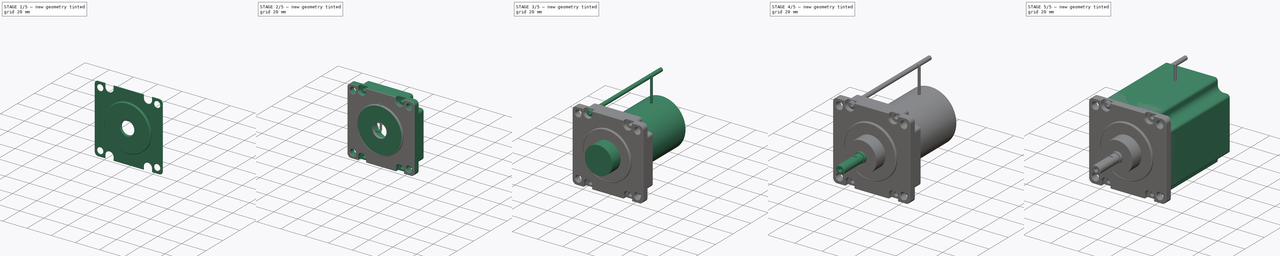
[diagram: build sequence overview — one tinted view per stage of 5, left to right]
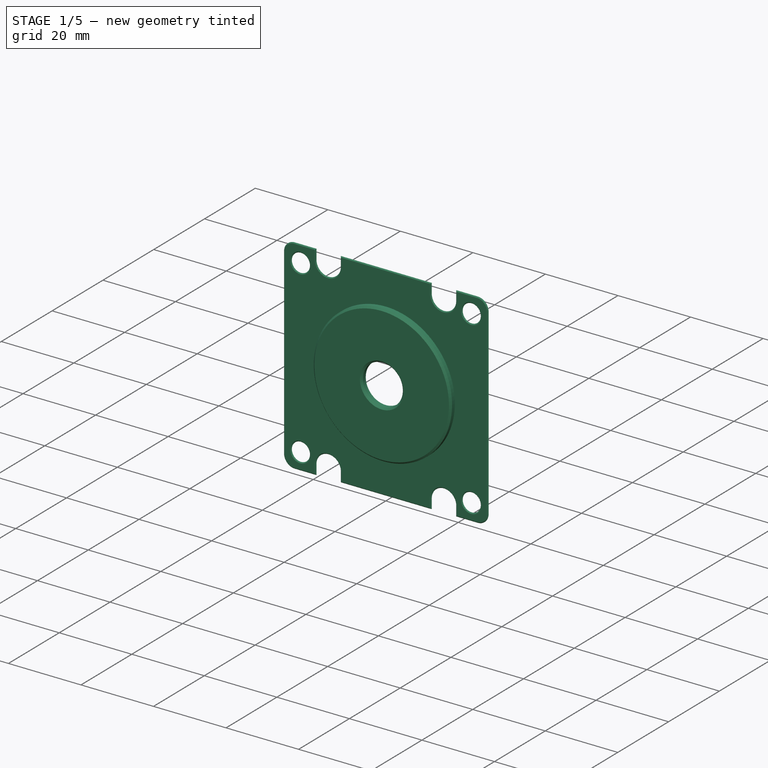
[diagram: stage 1 of 5 — iso view after this stage's code; geometry added in this stage tinted green]
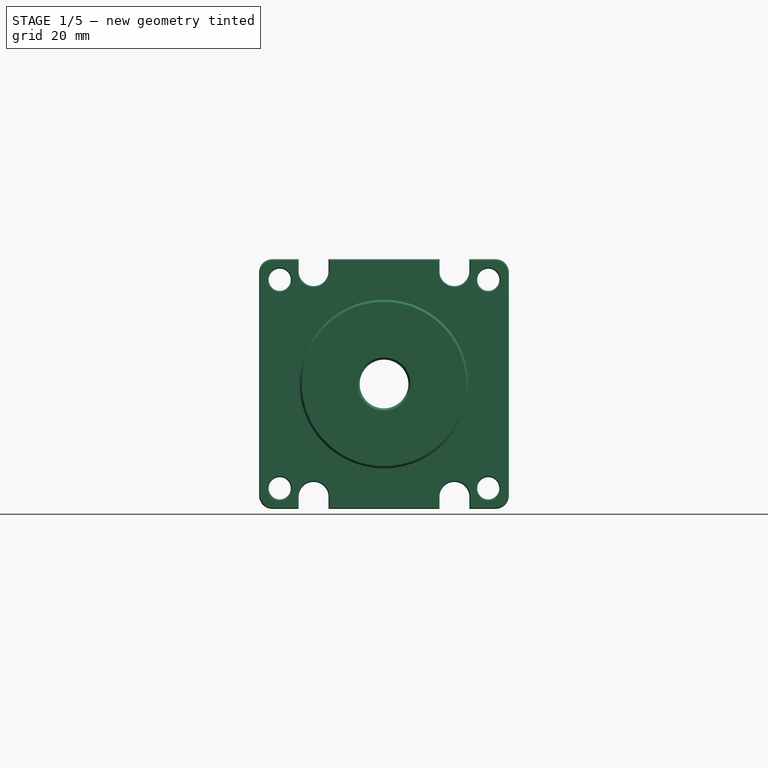
[diagram: stage 1 of 5 — front view after this stage's code; geometry added in this stage tinted green]
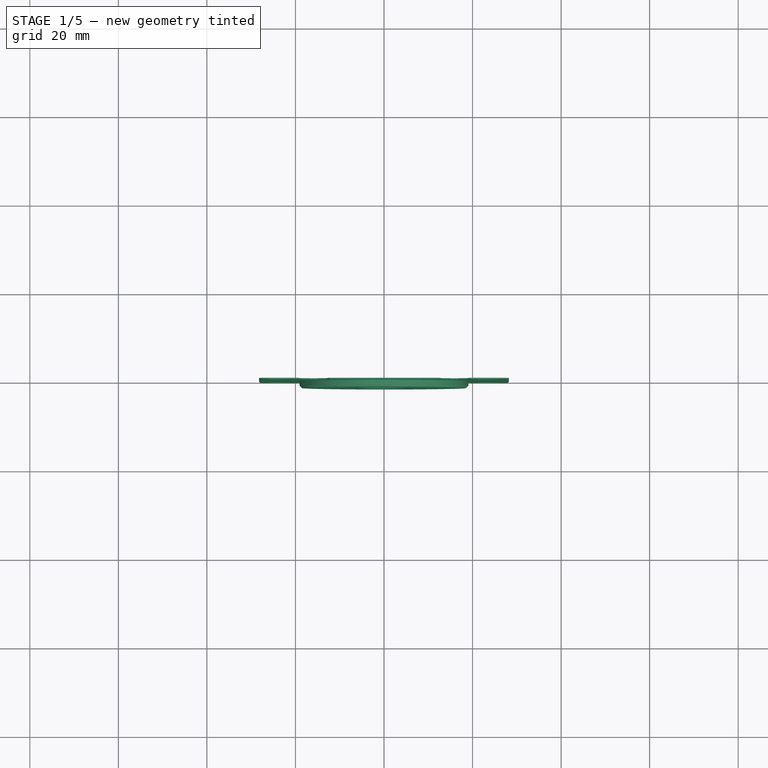
[diagram: stage 1 of 5 — top view after this stage's code; geometry added in this stage tinted green]
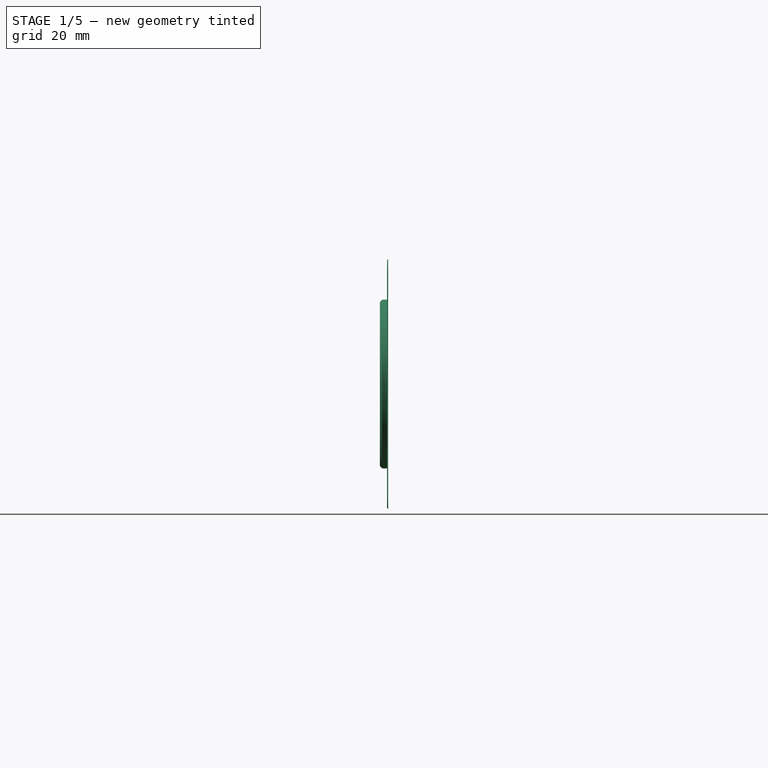
[diagram: stage 1 of 5 — right view after this stage's code; geometry added in this stage tinted green]
FCSTD DOCUMENT  (FreeCAD 0.20R29410 (Git))
Label: Nema 23 84mm Frame Stepper Motor
License: All rights reserved
LicenseURL: http://en.wikipedia.org/wiki/All_rights_reserved
objects: Sketcher::SketchObject×40, PartDesign::Pocket×21, PartDesign::Pad×20, PartDesign::Body×19, PartDesign::FeatureBase×8, PartDesign::Chamfer×5, PartDesign::Revolution×1, Part::MultiFuse×1, Part::Cut×1, App::DocumentObjectGroup×1
note: 163 computed .brp shape members not serialized (recipe doc carries the construction recipe); baked Part::Feature solids carry a one-line shape summary decoded from their .brp

FEATURE [Sketcher::SketchObject] Sketch036
  FullyConstrained = false
  MapMode = 5
  Placement = pos=(0,5,-8e-15) rot=(-1,0,0;1.5708rad)
  sketch-geometry (25):
    g0: LineSegment StartX=-26.2 StartY=19.45 StartZ=0 EndX=-23.7 EndY=19.45 EndZ=0
    g1: LineSegment StartX=-19.45 StartY=23.7 StartZ=0 EndX=-19.45 EndY=26.2 EndZ=0
    g2: LineSegment StartX=19.45 StartY=26.2 StartZ=0 EndX=19.45 EndY=23.7 EndZ=0
    g3: LineSegment StartX=23.7 StartY=19.45 StartZ=0 EndX=26.2 EndY=19.45 EndZ=0
    g4: LineSegment StartX=19.45 StartY=-26.2 StartZ=0 EndX=19.45 EndY=-23.7 EndZ=0
    g5: LineSegment StartX=23.7 StartY=-19.45 StartZ=0 EndX=26.2 EndY=-19.45 EndZ=0
    g6: LineSegment StartX=-26.2 StartY=-19.45 StartZ=0 EndX=-23.7 EndY=-19.45 EndZ=0
    g7: LineSegment StartX=-19.45 StartY=-26.2 StartZ=0 EndX=-19.45 EndY=-23.7 EndZ=0
    g8: LineSegment StartX=-28.2 StartY=17.45 StartZ=0 EndX=-28.2 EndY=-17.45 EndZ=0
    g9: LineSegment StartX=-17.45 StartY=28.2 StartZ=0 EndX=17.45 EndY=28.2 EndZ=0
    g10: LineSegment StartX=28.2 StartY=17.45 StartZ=0 EndX=28.2 EndY=-17.45 EndZ=0
    g11: LineSegment StartX=-17.45 StartY=-28.2 StartZ=0 EndX=17.45 EndY=-28.2 EndZ=0
    g12: ArcOfCircle CenterX=-17.45 CenterY=26.2 CenterZ=0 NormalX=0 NormalY=0 NormalZ=1 AngleXU=0 Radius=2 StartAngle=1.5708 EndAngle=3.14159
    g13: ArcOfCircle CenterX=-23.7 CenterY=23.7 CenterZ=0 NormalX=0 NormalY=0 NormalZ=1 AngleXU=0 Radius=4.25 StartAngle=4.71239 EndAngle=6.28319
    g14: ArcOfCircle CenterX=-26.2 CenterY=17.45 CenterZ=0 NormalX=0 NormalY=0 NormalZ=1 AngleXU=0 Radius=2 StartAngle=1.5708 EndAngle=3.14159
    g15: ArcOfCircle CenterX=17.45 CenterY=26.2 CenterZ=0 NormalX=0 NormalY=0 NormalZ=1 AngleXU=0 Radius=2 StartAngle=2e-16 EndAngle=1.5708
    g16: ArcOfCircle CenterX=23.7 CenterY=23.7 CenterZ=0 NormalX=0 NormalY=0 NormalZ=1 AngleXU=0 Radius=4.25 StartAngle=3.14159 EndAngle=4.71239
    g17: ArcOfCircle CenterX=26.2 CenterY=17.45 CenterZ=0 NormalX=0 NormalY=0 NormalZ=1 AngleXU=0 Radius=2 StartAngle=0 EndAngle=1.5708
    g18: ArcOfCircle CenterX=-26.2 CenterY=-17.45 CenterZ=0 NormalX=0 NormalY=0 NormalZ=1 AngleXU=0 Radius=2 StartAngle=3.14159 EndAngle=4.71239
    g19: ArcOfCircle CenterX=-23.7 CenterY=-23.7 CenterZ=0 NormalX=0 NormalY=0 NormalZ=1 AngleXU=0 Radius=4.25 StartAngle=4e-16 EndAngle=1.5708
    g20: ArcOfCircle CenterX=-17.45 CenterY=-26.2 CenterZ=0 NormalX=0 NormalY=0 NormalZ=1 AngleXU=0 Radius=2 StartAngle=3.14159 EndAngle=4.71239
    g21: ArcOfCircle CenterX=26.2 CenterY=-17.45 CenterZ=0 NormalX=0 NormalY=0 NormalZ=1 AngleXU=0 Radius=2 StartAngle=4.71239 EndAngle=6.28319
    g22: ArcOfCircle CenterX=23.7 CenterY=-23.7 CenterZ=0 NormalX=0 NormalY=0 NormalZ=1 AngleXU=0 Radius=4.25 StartAngle=1.5708 EndAngle=3.14159
    g23: ArcOfCircle CenterX=17.45 CenterY=-26.2 CenterZ=0 NormalX=0 NormalY=0 NormalZ=1 AngleXU=0 Radius=2 StartAngle=4.71239 EndAngle=6.28319
    g24: Circle CenterX=0 CenterY=0 CenterZ=0 NormalX=0 NormalY=0 NormalZ=1 AngleXU=0 Radius=5.5
  constraints (60):
    c: Horizontal(g0)
    c: Vertical(g2)
    c: Horizontal(g3)
    c: Vertical(g4)
    c: Horizontal(g5)
    c: Horizontal(g6)
    c: Vertical(g7)
    c: Vertical(g8)
    c: Vertical(g10)
    c: Tangent(g0,g13) = -1.5708
    c: Tangent(g13,g1) = -1.5708
    c: Tangent(g1,g12) = 1.5708
    c: Tangent(g8,g14) = -1.5708
    c: Tangent(g0,g14) = 1.5708
    c: Tangent(g9,g12) = 1.5708
    c: Vertical(g1)
    c: Tangent(g9,g15) = 1.5708
    c: Tangent(g2,g15) = 1.5708
    c: Tangent(g3,g16) = -1.5708
    c: Tangent(g2,g16) = -1.5708
    c: Tangent(g3,g17) = 1.5708
    c: Tangent(g10,g17) = 1.5708
    c: Tangent(g11,g20) = -1.5708
    c: Tangent(g7,g20) = 1.5708
    c: Tangent(g7,g19) = -1.5708
    c: Tangent(g6,g19) = 1.5708
    c: Tangent(g6,g18) = -1.5708
    c: Tangent(g18,g8) = -1.5708
    c: Tangent(g4,g23) = -1.5708
    c: Tangent(g4,g22) = 1.5708
    c: Tangent(g5,g22) = 1.5708
    c: Tangent(g5,g21) = -1.5708
    c: Tangent(g10,g21) = 1.5708
    c: Tangent(g11,g23) = -1.5708
    c: Equal(g17,g15)
    c: Equal(g15,g12)
    c: Equal(g12,g14)
    c: Equal(g14,g18)
    c: Equal(g18,g20)
    c: Equal(g20,g23)
    c: Equal(g23,g21)
    c: Radius(g14) = 2
    c: Radius(g13) = 4.25
    c: Equal(g13,g16)
    c: Equal(g16,g22)
    c: Equal(g22,g19)
    c: Equal(g6,g0)
    c: Equal(g1,g7)
    c: Equal(g4,g7)
    c: Equal(g5,g6)
    c: Equal(g3,g5)
    c: Equal(g2,g1)
    c: DistanceY(g0,g9) = 8.75
    c: DistanceX(g8,g1) = 8.75
    c: DistanceY(g11,g9) = 56.4
    c: DistanceX(g8,g10) = 56.4
    c: Coincident(g24,g-1)
    c: Radius(g24) = 5.5
    c: Symmetric(g8,g10,g-2)
    c: Symmetric(g9,g11,g-1)
FEATURE [PartDesign::Pad] Pad020
  AllowMultiFace = false
  Direction = (1,1,1)
  Length = 6
  Length2 = 100
  Placement = pos=(0,5,-8e-15) rot=(-1,0,0;1.5708rad)
  Profile = -> Sketch036
  Type = 0
FEATURE [Sketcher::SketchObject] Sketch035
  FullyConstrained = false
  MapMode = 5
  Placement = pos=(0,5,-8e-15) rot=(1,0,0;1.5708rad)
  Support = -> [Pad020]
  sketch-geometry (9):
    g0: LineSegment StartX=-28.2 StartY=25.2 StartZ=0 EndX=-28.2 EndY=-25.2 EndZ=0
    g1: LineSegment StartX=28.2 StartY=25.2 StartZ=0 EndX=28.2 EndY=-25.2 EndZ=0
    g2: LineSegment StartX=-25.2 StartY=-28.2 StartZ=0 EndX=25.2 EndY=-28.2 EndZ=0
    g3: LineSegment StartX=-25.2 StartY=28.2 StartZ=0 EndX=25.2 EndY=28.2 EndZ=0
    g4: ArcOfCircle CenterX=-25.2 CenterY=25.2 CenterZ=0 NormalX=0 NormalY=0 NormalZ=1 AngleXU=0 Radius=3 StartAngle=1.5708 EndAngle=3.14159
    g5: ArcOfCircle CenterX=25.2 CenterY=25.2 CenterZ=0 NormalX=0 NormalY=0 NormalZ=1 AngleXU=0 Radius=3 StartAngle=0 EndAngle=1.5708
    g6: ArcOfCircle CenterX=-25.2 CenterY=-25.2 CenterZ=0 NormalX=0 NormalY=0 NormalZ=1 AngleXU=0 Radius=3 StartAngle=3.14159 EndAngle=4.71239
    g7: ArcOfCircle CenterX=25.2 CenterY=-25.2 CenterZ=0 NormalX=0 NormalY=0 NormalZ=1 AngleXU=0 Radius=3 StartAngle=4.71239 EndAngle=6.28319
    g8: Circle CenterX=0 CenterY=0 CenterZ=0 NormalX=0 NormalY=0 NormalZ=1 AngleXU=0 Radius=5.5
  constraints (19):
    c: Tangent(g1,g7) = 1.5708
    c: Tangent(g2,g7) = -1.5708
    c: Tangent(g2,g6) = -1.5708
    c: Tangent(g0,g6) = -1.5708
    c: Tangent(g0,g4) = -1.5708
    c: Tangent(g3,g4) = 1.5708
    c: Tangent(g3,g5) = 1.5708
    c: Tangent(g1,g5) = 1.5708
    c: Equal(g3,g0)
    c: Equal(g0,g2)
    c: Equal(g2,g1)
    c: Radius(g4) = 3
    c: Symmetric(g0,g1,g-2)
    c: Symmetric(g2,g2,g-2)
    c: Symmetric(g3,g2,g-1)
    c: Equal(g4,g7)
    c: DistanceY(g2,g3) = 56.4
    c: Coincident(g8,g-1)
    c: Radius(g8) = 5.5
FEATURE [PartDesign::Pad] Pad019
  AllowMultiFace = false
  BaseFeature = -> Pad020
  Direction = (1,1,1)
  Length = 5
  Length2 = 100
  Placement = pos=(0,5,-8e-15) rot=(-1,0,0;1.5708rad)
  Profile = -> Sketch035
  Type = 0
FEATURE [Sketcher::SketchObject] Sketch037
  FullyConstrained = false
  MapMode = 5
  Placement = pos=(-1e-16,-6.2e-15,-7.5e-15) rot=(1,0,0;1.5708rad)
  Support = -> [Pad019]
  sketch-geometry (2):
    g0: Circle CenterX=0 CenterY=0 CenterZ=0 NormalX=0 NormalY=0 NormalZ=1 AngleXU=0 Radius=19.05
    g1: Circle CenterX=0 CenterY=0 CenterZ=0 NormalX=0 NormalY=0 NormalZ=1 AngleXU=0 Radius=5.5
  constraints (4):
    c: Coincident(g0,g-1)
    c: Radius(g0) = 19.05
    c: Coincident(g0,g1)
    c: Radius(g1) = 5.5
FEATURE [PartDesign::Pad] Pad021
  AllowMultiFace = false
  BaseFeature = -> Pad019
  Direction = (0,-1,2e-16)
  Length = 1.6
  Length2 = 100
  Placement = pos=(0,5,-8e-15) rot=(-1,0,0;1.5708rad)
  Profile = -> Sketch037
  ReferenceAxis = -> Sketch037 [N_Axis]
  Type = 0
FEATURE [Sketcher::SketchObject] Sketch038
  FullyConstrained = true
  MapMode = 5
  Placement = pos=(-1e-16,-6.2e-15,-7.5e-15) rot=(1,0,0;1.5708rad)
  Support = -> [Pad021]
  sketch-geometry (8):
    g0: LineSegment StartX=-23.55 StartY=23.55 StartZ=0 EndX=23.55 EndY=23.55 EndZ=0
    g1: LineSegment StartX=23.55 StartY=23.55 StartZ=0 EndX=23.55 EndY=-23.55 EndZ=0
    g2: LineSegment StartX=23.55 StartY=-23.55 StartZ=0 EndX=-23.55 EndY=-23.55 EndZ=0
    g3: LineSegment StartX=-23.55 StartY=-23.55 StartZ=0 EndX=-23.55 EndY=23.55 EndZ=0
    g4: Circle CenterX=-23.55 CenterY=23.55 CenterZ=0 NormalX=0 NormalY=0 NormalZ=1 AngleXU=0 Radius=2.5
    g5: Circle CenterX=23.55 CenterY=23.55 CenterZ=0 NormalX=0 NormalY=0 NormalZ=1 AngleXU=0 Radius=2.5
    g6: Circle CenterX=23.55 CenterY=-23.55 CenterZ=0 NormalX=0 NormalY=0 NormalZ=1 AngleXU=0 Radius=2.5
    g7: Circle CenterX=-23.55 CenterY=-23.55 CenterZ=0 NormalX=0 NormalY=0 NormalZ=1 AngleXU=0 Radius=2.5
  constraints (18):
    c: Coincident(g0,g1)
    c: Coincident(g1,g2)
    c: Coincident(g2,g3)
    c: Coincident(g3,g0)
    c: Equal(g0,g3)
    c: Equal(g3,g2)
    c: Equal(g2,g1)
    c: Symmetric(g0,g0,g-2)
    c: Symmetric(g0,g2,g-1)
    c: DistanceX(g2,g1) = 47.1
    c: Coincident(g2,g7)
    c: Coincident(g0,g4)
    c: Coincident(g0,g5)
    c: Coincident(g1,g6)
    c: Equal(g4,g5)
    c: Equal(g5,g6)
    c: Equal(g6,g7)
    c: Radius(g4) = 2.5
FEATURE [PartDesign::Pocket] Pocket015
  AllowMultiFace = false
  BaseFeature = -> Pad021
  Direction = (0,1,-2e-16)
  Length = 5
  Length2 = 100
  Placement = pos=(0,5,-8e-15) rot=(-1,0,0;1.5708rad)
  Profile = -> Sketch038
  Type = 1
FEATURE [Sketcher::SketchObject] Sketch039
  FullyConstrained = true
  MapMode = 5
  Placement = pos=(0,11,-4e-15) rot=(-1,0,0;1.5708rad)
  Support = -> [Pocket015]
  sketch-geometry (8):
    g0: LineSegment StartX=-15.9 StartY=25.5 StartZ=0 EndX=15.9 EndY=25.5 EndZ=0
    g1: LineSegment StartX=15.9 StartY=25.5 StartZ=0 EndX=15.9 EndY=-25.5 EndZ=0
    g2: LineSegment StartX=15.9 StartY=-25.5 StartZ=0 EndX=-15.9 EndY=-25.5 EndZ=0
    g3: LineSegment StartX=-15.9 StartY=-25.5 StartZ=0 EndX=-15.9 EndY=25.5 EndZ=0
    g4: Circle CenterX=-15.9 CenterY=25.5 CenterZ=0 NormalX=0 NormalY=0 NormalZ=1 AngleXU=0 Radius=1.5
    g5: Circle CenterX=15.9 CenterY=25.5 CenterZ=0 NormalX=0 NormalY=0 NormalZ=1 AngleXU=0 Radius=1.5
    g6: Circle CenterX=-15.9 CenterY=-25.5 CenterZ=0 NormalX=0 NormalY=0 NormalZ=1 AngleXU=0 Radius=1.5
    g7: Circle CenterX=15.9 CenterY=-25.5 CenterZ=0 NormalX=0 NormalY=0 NormalZ=1 AngleXU=0 Radius=1.5
  constraints (17):
    c: Coincident(g0,g1)
    c: Coincident(g1,g2)
    c: Coincident(g2,g3)
    c: Coincident(g3,g0)
    c: Equal(g3,g1)
    c: Symmetric(g2,g0,g-1)
    c: Symmetric(g0,g1,g-1)
    c: Symmetric(g0,g0,g-2)
    c: DistanceX(g0,g0) = 31.8
    c: DistanceY(g1,g0) = 51
    c: Coincident(g1,g7)
    c: Coincident(g5,g0)
    c: Coincident(g0,g4)
    c: Coincident(g6,g2)
    c: Equal(g6,g7)
    c: Equal(g7,g5)
    c: Equal(g5,g4)
FEATURE [PartDesign::Pocket] Pocket016
  AllowMultiFace = false
  BaseFeature = -> Pocket015
  Direction = (0,-1,-7e-16)
  Length = 5
  Length2 = 100
  Placement = pos=(0,5,-8e-15) rot=(-1,0,0;1.5708rad)
  Profile = -> Sketch039
  Type = 1
FEATURE [Sketcher::SketchObject] Sketch040
  ExternalGeometry = -> [Pocket016]
  FullyConstrained = false
  MapMode = 5
  Placement = pos=(-1e-16,-6.2e-15,-7.5e-15) rot=(1,0,0;1.5708rad)
  Support = -> [Pocket016]
  sketch-geometry (16):
    g0: LineSegment StartX=-19.275 StartY=-25.5 StartZ=0 EndX=-19.275 EndY=-30.5 EndZ=0
    g1: LineSegment StartX=-19.275 StartY=-30.5 StartZ=0 EndX=-12.525 EndY=-30.5 EndZ=0
    g2: LineSegment StartX=-12.525 StartY=-30.5 StartZ=0 EndX=-12.525 EndY=-25.5 EndZ=0
    g3: LineSegment StartX=12.525 StartY=-25.5 StartZ=0 EndX=12.525 EndY=-30.5 EndZ=0
    g4: LineSegment StartX=12.525 StartY=-30.5 StartZ=0 EndX=19.275 EndY=-30.5 EndZ=0
    g5: LineSegment StartX=19.275 StartY=-30.5 StartZ=0 EndX=19.275 EndY=-25.5 EndZ=0
    g6: ArcOfCircle CenterX=-15.9 CenterY=-25.5 CenterZ=0 NormalX=0 NormalY=0 NormalZ=1 AngleXU=0 Radius=3.375 StartAngle=0 EndAngle=3.14159
    g7: ArcOfCircle CenterX=15.9 CenterY=-25.5 CenterZ=0 NormalX=0 NormalY=0 NormalZ=1 AngleXU=0 Radius=3.375 StartAngle=0 EndAngle=3.14159
    g8: LineSegment StartX=-19.275 StartY=25.5 StartZ=0 EndX=-19.275 EndY=30.5 EndZ=0
    g9: LineSegment StartX=-19.275 StartY=30.5 StartZ=0 EndX=-12.525 EndY=30.5 EndZ=0
    g10: LineSegment StartX=-12.525 StartY=30.5 StartZ=0 EndX=-12.525 EndY=25.5 EndZ=0
    g11: LineSegment StartX=12.525 StartY=25.5 StartZ=0 EndX=12.525 EndY=30.5 EndZ=0
    g12: LineSegment StartX=12.525 StartY=30.5 StartZ=0 EndX=19.275 EndY=30.5 EndZ=0
    g13: LineSegment StartX=19.275 StartY=30.5 StartZ=0 EndX=19.275 EndY=25.5 EndZ=0
    g14: ArcOfCircle CenterX=-15.9 CenterY=25.5 CenterZ=0 NormalX=0 NormalY=0 NormalZ=1 AngleXU=0 Radius=3.375 StartAngle=3.14159 EndAngle=6.28319
    g15: ArcOfCircle CenterX=15.9 CenterY=25.5 CenterZ=0 NormalX=0 NormalY=0 NormalZ=1 AngleXU=0 Radius=3.375 StartAngle=3.14159 EndAngle=6.28319
  constraints (36):
    c: Vertical(g0)
    c: Coincident(g0,g1)
    c: Horizontal(g1)
    c: Coincident(g1,g2)
    c: Vertical(g2)
    c: Vertical(g3)
    c: Coincident(g3,g4)
    c: Horizontal(g4)
    c: Coincident(g4,g5)
    c: Tangent(g3,g7) = -1.5708
    c: Tangent(g5,g7) = -1.5708
    c: Tangent(g0,g6) = -1.5708
    c: Tangent(g2,g6) = -1.5708
    c: Equal(g2,g3)
    c: Equal(g6,g7)
    c: Radius(g6) = 3.375
    c: DistanceY(g0,g0) = 5
    c: Vertical(g5)
    c: Vertical(g8)
    c: Coincident(g8,g9)
    c: Horizontal(g9)
    c: Coincident(g9,g10)
    c: Vertical(g11)
    c: Coincident(g11,g12)
    c: Horizontal(g12)
    c: Coincident(g12,g13)
    c: Vertical(g13)
    c: Tangent(g8,g14) = 1.5708
    c: Tangent(g10,g14) = 1.5708
    c: Tangent(g11,g15) = 1.5708
    c: Tangent(g13,g15) = 1.5708
    c: Equal(g15,g7)
    c: Equal(g7,g14)
    c: Vertical(g10)
    c: Equal(g8,g11)
    c: Equal(g11,g3)
FEATURE [PartDesign::Pocket] Pocket017
  AllowMultiFace = false
  BaseFeature = -> Pocket016
  Direction = (0,1,-2e-16)
  Length = 3
  Length2 = 100
  Placement = pos=(0,5,-8e-15) rot=(-1,0,0;1.5708rad)
  Profile = -> Sketch040
  Type = 0
FEATURE [Sketcher::SketchObject] Sketch041
  FullyConstrained = true
  MapMode = 5
  Placement = pos=(0,11,-4e-15) rot=(-1,0,0;1.5708rad)
  Support = -> [Pocket017]
  sketch-geometry (1):
    g0: Circle CenterX=0 CenterY=0 CenterZ=0 NormalX=0 NormalY=0 NormalZ=1 AngleXU=0 Radius=11
  constraints (2):
    c: Coincident(g0,g-1)
    c: Radius(g0) = 11
FEATURE [PartDesign::Pocket] Pocket018
  AllowMultiFace = false
  BaseFeature = -> Pocket017
  Direction = (0,-1,-7e-16)
  Length = 11
  Length2 = 100
  Placement = pos=(0,5,-8e-15) rot=(-1,0,0;1.5708rad)
  Profile = -> Sketch041
  Refine = true
  Type = 0
FEATURE [PartDesign::Body] Body  label="Face"
  Group = -> [Sketch003,Pad002,Sketch,Pad,Sketch005,Pad004,Sketch006,Pocket,Sketch007,Pocket001,Sketch012,Pocket004,Sketch018,Pocket009,Pocket014,Pocket021]
  Origin = -> Origin
  Tip = -> Pocket021
FEATURE [PartDesign::Chamfer] Chamfer004
  Angle = 45
  Base = -> Pocket018 [Edge121,Edge4,Edge122,Edge100,Edge102,Edge104,Edge106,Edge124,Edge110,Edge58,Edge120,Edge60,Edge118,Edge116,Edge111,Edge112,Edge125,Edge114]
  BaseFeature = -> Pocket018
  ChamferType = 0
  FlipDirection = false
  Placement = pos=(0,5,-8e-15) rot=(-1,0,0;1.5708rad)
  Size = 0.25
  Size2 = 1
  SupportTransform = false
  UseAllEdges = false
FEATURE [PartDesign::Chamfer] Chamfer005
  Angle = 45
  Base = -> Chamfer004 [Edge210,Edge231]
  BaseFeature = -> Chamfer004
  ChamferType = 0
  FlipDirection = false
  Placement = pos=(0,5,-8e-15) rot=(-1,0,0;1.5708rad)
  Size = 0.5
  Size2 = 1
  SupportTransform = false
  UseAllEdges = false
FEATURE [PartDesign::Pocket] Pocket022
  BaseFeature = -> Chamfer005
  Direction = (0,-1,-7e-16)
  Length = 10.75
  Length2 = 5
  Placement = pos=(0,5,-8e-15) rot=(-1,0,0;1.5708rad)
  Profile = -> Sketch042
  ReferenceAxis = -> Sketch042 [N_Axis]
  Type = 0
FEATURE [PartDesign::Body] Body019  label="Face001"
  Group = -> [Sketch036,Pad020,Sketch035,Pad019,Sketch037,Pad021,Sketch038,Pocket015,Sketch039,Pocket016,Sketch040,Pocket017,Sketch041,Pocket018,Sketch042,Chamfer004,Chamfer005,Pocket022,Sketch043,Pocket023]
  Origin = -> Origin019
  Tip = -> Pocket023
FEATURE [Sketcher::SketchObject] Sketch044
  FullyConstrained = true
  MapMode = 5
  Placement = pos=(0,0,0) rot=(1,0,0;1.5708rad)
  Support = -> [XZ_Plane020]
  sketch-geometry (2):
    g0: Circle CenterX=0 CenterY=0 CenterZ=0 NormalX=0 NormalY=0 NormalZ=1 AngleXU=0 Radius=6
    g1: Circle CenterX=0 CenterY=0 CenterZ=0 NormalX=0 NormalY=0 NormalZ=1 AngleXU=0 Radius=18.55
  constraints (4):
    c: Coincident(g0,g-1)
    c: Coincident(g1,g0)
    c: Diameter(g1) = 37.1
    c: Diameter(g0) = 12
FEATURE [PartDesign::Pad] Pad022
  Direction = (0,-1,2e-16)
  Length = 0.5
  Length2 = 10
  Placement = pos=(0,0,0) rot=(1,0,0;1.5708rad)
  Profile = -> Sketch044
  ReferenceAxis = -> Sketch044 [N_Axis]
  Type = 0
FEATURE [PartDesign::Body] Body020
  Group = -> [Sketch044,Pad022]
  Origin = -> Origin020
  Placement = pos=(-1e-16,-1.1,-7.9e-15) rot=(0,0,1;0rad)
  Tip = -> Pad022
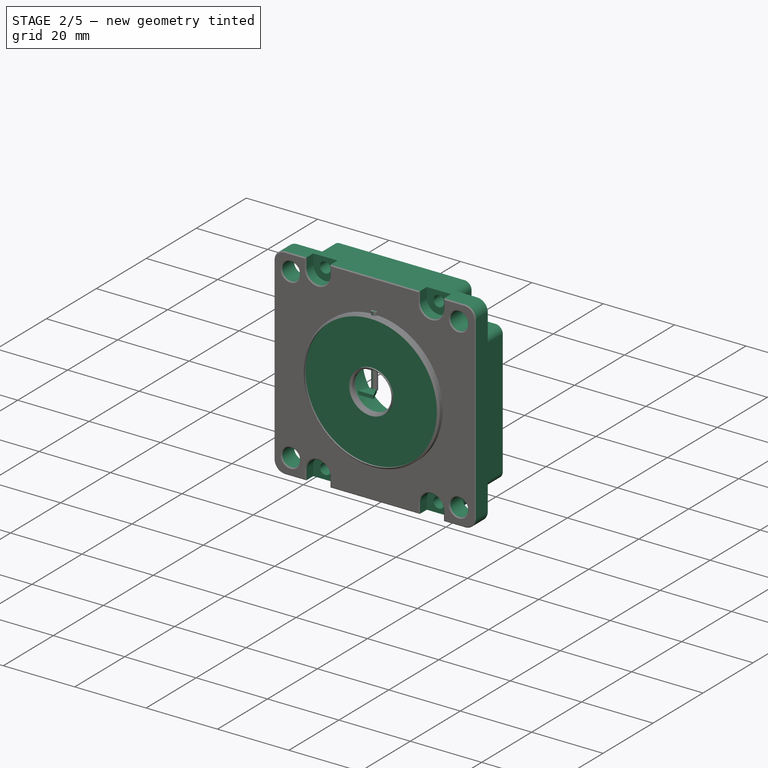
[diagram: stage 2 of 5 — iso view after this stage's code; geometry added in this stage tinted green]
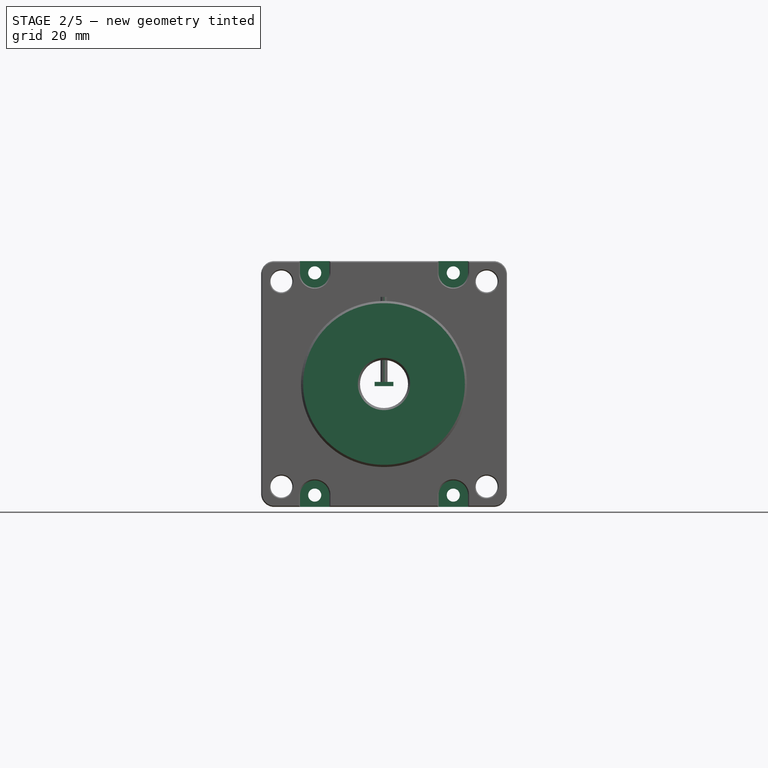
[diagram: stage 2 of 5 — front view after this stage's code; geometry added in this stage tinted green]
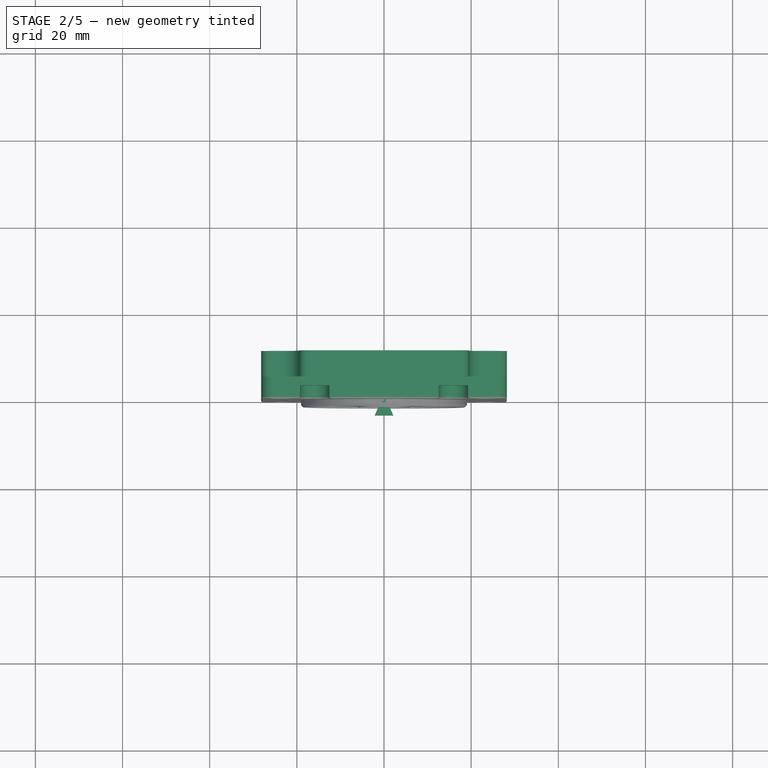
[diagram: stage 2 of 5 — top view after this stage's code; geometry added in this stage tinted green]
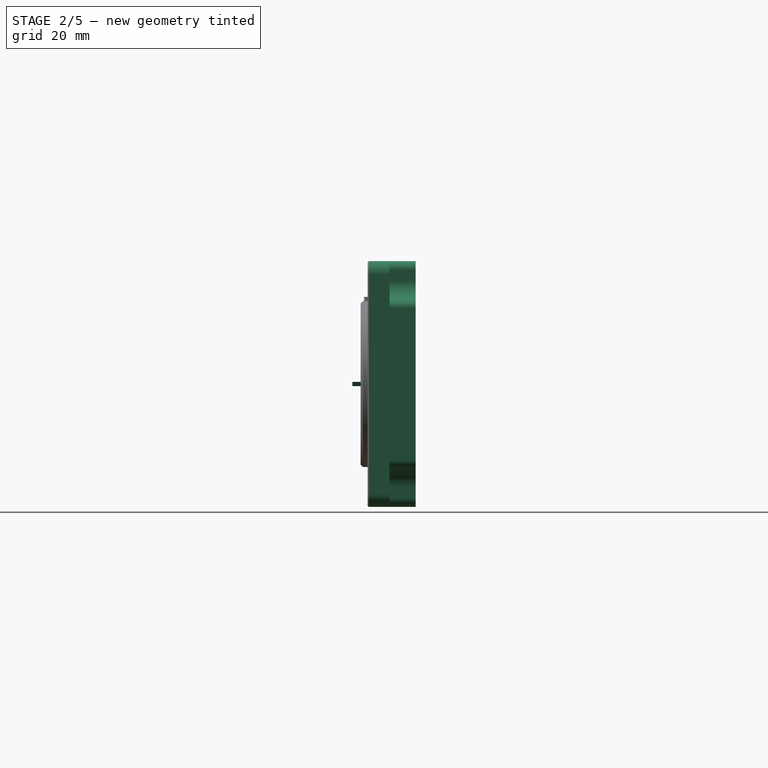
[diagram: stage 2 of 5 — right view after this stage's code; geometry added in this stage tinted green]
FEATURE [Sketcher::SketchObject] Sketch003
  FullyConstrained = false
  MapMode = 5
  Placement = pos=(0,5,-8e-15) rot=(-1,0,0;1.5708rad)
  sketch-geometry (25):
    g0: LineSegment StartX=-26.2 StartY=19.45 StartZ=0 EndX=-23.7 EndY=19.45 EndZ=0
    g1: LineSegment StartX=-19.45 StartY=23.7 StartZ=0 EndX=-19.45 EndY=26.2 EndZ=0
    g2: LineSegment StartX=19.45 StartY=26.2 StartZ=0 EndX=19.45 EndY=23.7 EndZ=0
    g3: LineSegment StartX=23.7 StartY=19.45 StartZ=0 EndX=26.2 EndY=19.45 EndZ=0
    g4: LineSegment StartX=19.45 StartY=-26.2 StartZ=0 EndX=19.45 EndY=-23.7 EndZ=0
    g5: LineSegment StartX=23.7 StartY=-19.45 StartZ=0 EndX=26.2 EndY=-19.45 EndZ=0
    g6: LineSegment StartX=-26.2 StartY=-19.45 StartZ=0 EndX=-23.7 EndY=-19.45 EndZ=0
    g7: LineSegment StartX=-19.45 StartY=-26.2 StartZ=0 EndX=-19.45 EndY=-23.7 EndZ=0
    g8: LineSegment StartX=-28.2 StartY=17.45 StartZ=0 EndX=-28.2 EndY=-17.45 EndZ=0
    g9: LineSegment StartX=-17.45 StartY=28.2 StartZ=0 EndX=17.45 EndY=28.2 EndZ=0
    g10: LineSegment StartX=28.2 StartY=17.45 StartZ=0 EndX=28.2 EndY=-17.45 EndZ=0
    g11: LineSegment StartX=-17.45 StartY=-28.2 StartZ=0 EndX=17.45 EndY=-28.2 EndZ=0
    g12: ArcOfCircle CenterX=-17.45 CenterY=26.2 CenterZ=0 NormalX=0 NormalY=0 NormalZ=1 AngleXU=0 Radius=2 StartAngle=1.5708 EndAngle=3.14159
    g13: ArcOfCircle CenterX=-23.7 CenterY=23.7 CenterZ=0 NormalX=0 NormalY=0 NormalZ=1 AngleXU=0 Radius=4.25 StartAngle=4.71239 EndAngle=6.28319
    g14: ArcOfCircle CenterX=-26.2 CenterY=17.45 CenterZ=0 NormalX=0 NormalY=0 NormalZ=1 AngleXU=0 Radius=2 StartAngle=1.5708 EndAngle=3.14159
    g15: ArcOfCircle CenterX=17.45 CenterY=26.2 CenterZ=0 NormalX=0 NormalY=0 NormalZ=1 AngleXU=0 Radius=2 StartAngle=2e-16 EndAngle=1.5708
    g16: ArcOfCircle CenterX=23.7 CenterY=23.7 CenterZ=0 NormalX=0 NormalY=0 NormalZ=1 AngleXU=0 Radius=4.25 StartAngle=3.14159 EndAngle=4.71239
    g17: ArcOfCircle CenterX=26.2 CenterY=17.45 CenterZ=0 NormalX=0 NormalY=0 NormalZ=1 AngleXU=0 Radius=2 StartAngle=0 EndAngle=1.5708
    g18: ArcOfCircle CenterX=-26.2 CenterY=-17.45 CenterZ=0 NormalX=0 NormalY=0 NormalZ=1 AngleXU=0 Radius=2 StartAngle=3.14159 EndAngle=4.71239
    g19: ArcOfCircle CenterX=-23.7 CenterY=-23.7 CenterZ=0 NormalX=0 NormalY=0 NormalZ=1 AngleXU=0 Radius=4.25 StartAngle=4e-16 EndAngle=1.5708
    g20: ArcOfCircle CenterX=-17.45 CenterY=-26.2 CenterZ=0 NormalX=0 NormalY=0 NormalZ=1 AngleXU=0 Radius=2 StartAngle=3.14159 EndAngle=4.71239
    g21: ArcOfCircle CenterX=26.2 CenterY=-17.45 CenterZ=0 NormalX=0 NormalY=0 NormalZ=1 AngleXU=0 Radius=2 StartAngle=4.71239 EndAngle=6.28319
    g22: ArcOfCircle CenterX=23.7 CenterY=-23.7 CenterZ=0 NormalX=0 NormalY=0 NormalZ=1 AngleXU=0 Radius=4.25 StartAngle=1.5708 EndAngle=3.14159
    g23: ArcOfCircle CenterX=17.45 CenterY=-26.2 CenterZ=0 NormalX=0 NormalY=0 NormalZ=1 AngleXU=0 Radius=2 StartAngle=4.71239 EndAngle=6.28319
    g24: Circle CenterX=0 CenterY=0 CenterZ=0 NormalX=0 NormalY=0 NormalZ=1 AngleXU=0 Radius=5.5
  constraints (60):
    c: Horizontal(g0)
    c: Vertical(g2)
    c: Horizontal(g3)
    c: Vertical(g4)
    c: Horizontal(g5)
    c: Horizontal(g6)
    c: Vertical(g7)
    c: Vertical(g8)
    c: Vertical(g10)
    c: Tangent(g0,g13) = -1.5708
    c: Tangent(g13,g1) = -1.5708
    c: Tangent(g1,g12) = 1.5708
    c: Tangent(g8,g14) = -1.5708
    c: Tangent(g0,g14) = 1.5708
    c: Tangent(g9,g12) = 1.5708
    c: Vertical(g1)
    c: Tangent(g9,g15) = 1.5708
    c: Tangent(g2,g15) = 1.5708
    c: Tangent(g3,g16) = -1.5708
    c: Tangent(g2,g16) = -1.5708
    c: Tangent(g3,g17) = 1.5708
    c: Tangent(g10,g17) = 1.5708
    c: Tangent(g11,g20) = -1.5708
    c: Tangent(g7,g20) = 1.5708
    c: Tangent(g7,g19) = -1.5708
    c: Tangent(g6,g19) = 1.5708
    c: Tangent(g6,g18) = -1.5708
    c: Tangent(g18,g8) = -1.5708
    c: Tangent(g4,g23) = -1.5708
    c: Tangent(g4,g22) = 1.5708
    c: Tangent(g5,g22) = 1.5708
    c: Tangent(g5,g21) = -1.5708
    c: Tangent(g10,g21) = 1.5708
    c: Tangent(g11,g23) = -1.5708
    c: Equal(g17,g15)
    c: Equal(g15,g12)
    c: Equal(g12,g14)
    c: Equal(g14,g18)
    c: Equal(g18,g20)
    c: Equal(g20,g23)
    c: Equal(g23,g21)
    c: Radius(g14) = 2
    c: Radius(g13) = 4.25
    c: Equal(g13,g16)
    c: Equal(g16,g22)
    c: Equal(g22,g19)
    c: Equal(g6,g0)
    c: Equal(g1,g7)
    c: Equal(g4,g7)
    c: Equal(g5,g6)
    c: Equal(g3,g5)
    c: Equal(g2,g1)
    c: DistanceY(g0,g9) = 8.75
    c: DistanceX(g8,g1) = 8.75
    c: DistanceY(g11,g9) = 56.4
    c: DistanceX(g8,g10) = 56.4
    c: Coincident(g24,g-1)
    c: Radius(g24) = 5.5
    c: Symmetric(g8,g10,g-2)
    c: Symmetric(g9,g11,g-1)
FEATURE [PartDesign::Pad] Pad002
  AllowMultiFace = false
  Direction = (1,1,1)
  Length = 6
  Length2 = 100
  Placement = pos=(0,5,-8e-15) rot=(-1,0,0;1.5708rad)
  Profile = -> Sketch003
  Type = 0
FEATURE [Sketcher::SketchObject] Sketch
  FullyConstrained = false
  MapMode = 5
  Placement = pos=(0,5,-8e-15) rot=(1,0,0;1.5708rad)
  Support = -> [Pad002]
  sketch-geometry (9):
    g0: LineSegment StartX=-28.2 StartY=25.2 StartZ=0 EndX=-28.2 EndY=-25.2 EndZ=0
    g1: LineSegment StartX=28.2 StartY=25.2 StartZ=0 EndX=28.2 EndY=-25.2 EndZ=0
    g2: LineSegment StartX=-25.2 StartY=-28.2 StartZ=0 EndX=25.2 EndY=-28.2 EndZ=0
    g3: LineSegment StartX=-25.2 StartY=28.2 StartZ=0 EndX=25.2 EndY=28.2 EndZ=0
    g4: ArcOfCircle CenterX=-25.2 CenterY=25.2 CenterZ=0 NormalX=0 NormalY=0 NormalZ=1 AngleXU=0 Radius=3 StartAngle=1.5708 EndAngle=3.14159
    g5: ArcOfCircle CenterX=25.2 CenterY=25.2 CenterZ=0 NormalX=0 NormalY=0 NormalZ=1 AngleXU=0 Radius=3 StartAngle=0 EndAngle=1.5708
    g6: ArcOfCircle CenterX=-25.2 CenterY=-25.2 CenterZ=0 NormalX=0 NormalY=0 NormalZ=1 AngleXU=0 Radius=3 StartAngle=3.14159 EndAngle=4.71239
    g7: ArcOfCircle CenterX=25.2 CenterY=-25.2 CenterZ=0 NormalX=0 NormalY=0 NormalZ=1 AngleXU=0 Radius=3 StartAngle=4.71239 EndAngle=6.28319
    g8: Circle CenterX=0 CenterY=0 CenterZ=0 NormalX=0 NormalY=0 NormalZ=1 AngleXU=0 Radius=5.5
  constraints (19):
    c: Tangent(g1,g7) = 1.5708
    c: Tangent(g2,g7) = -1.5708
    c: Tangent(g2,g6) = -1.5708
    c: Tangent(g0,g6) = -1.5708
    c: Tangent(g0,g4) = -1.5708
    c: Tangent(g3,g4) = 1.5708
    c: Tangent(g3,g5) = 1.5708
    c: Tangent(g1,g5) = 1.5708
    c: Equal(g3,g0)
    c: Equal(g0,g2)
    c: Equal(g2,g1)
    c: Radius(g4) = 3
    c: Symmetric(g0,g1,g-2)
    c: Symmetric(g2,g2,g-2)
    c: Symmetric(g3,g2,g-1)
    c: Equal(g4,g7)
    c: DistanceY(g2,g3) = 56.4
    c: Coincident(g8,g-1)
    c: Radius(g8) = 5.5
FEATURE [PartDesign::Pad] Pad
  AllowMultiFace = false
  BaseFeature = -> Pad002
  Direction = (1,1,1)
  Length = 5
  Length2 = 100
  Placement = pos=(0,5,-8e-15) rot=(-1,0,0;1.5708rad)
  Profile = -> Sketch
  Type = 0
FEATURE [Sketcher::SketchObject] Sketch005
  FullyConstrained = false
  MapMode = 5
  Placement = pos=(-1e-16,-6.2e-15,-7.5e-15) rot=(1,0,0;1.5708rad)
  Support = -> [Pad]
  sketch-geometry (2):
    g0: Circle CenterX=0 CenterY=0 CenterZ=0 NormalX=0 NormalY=0 NormalZ=1 AngleXU=0 Radius=19.05
    g1: Circle CenterX=0 CenterY=0 CenterZ=0 NormalX=0 NormalY=0 NormalZ=1 AngleXU=0 Radius=5.5
  constraints (4):
    c: Coincident(g0,g-1)
    c: Radius(g0) = 19.05
    c: Coincident(g0,g1)
    c: Radius(g1) = 5.5
FEATURE [PartDesign::Pad] Pad004
  AllowMultiFace = false
  BaseFeature = -> Pad
  Direction = (0,-1,2e-16)
  Length = 1.1
  Length2 = 100
  Placement = pos=(0,5,-8e-15) rot=(-1,0,0;1.5708rad)
  Profile = -> Sketch005
  ReferenceAxis = -> Sketch005 [N_Axis]
  Type = 0
FEATURE [Sketcher::SketchObject] Sketch006
  FullyConstrained = true
  MapMode = 5
  Placement = pos=(-1e-16,-6.2e-15,-7.5e-15) rot=(1,0,0;1.5708rad)
  Support = -> [Pad004]
  sketch-geometry (8):
    g0: LineSegment StartX=-23.55 StartY=23.55 StartZ=0 EndX=23.55 EndY=23.55 EndZ=0
    g1: LineSegment StartX=23.55 StartY=23.55 StartZ=0 EndX=23.55 EndY=-23.55 EndZ=0
    g2: LineSegment StartX=23.55 StartY=-23.55 StartZ=0 EndX=-23.55 EndY=-23.55 EndZ=0
    g3: LineSegment StartX=-23.55 StartY=-23.55 StartZ=0 EndX=-23.55 EndY=23.55 EndZ=0
    g4: Circle CenterX=-23.55 CenterY=23.55 CenterZ=0 NormalX=0 NormalY=0 NormalZ=1 AngleXU=0 Radius=2.5
    g5: Circle CenterX=23.55 CenterY=23.55 CenterZ=0 NormalX=0 NormalY=0 NormalZ=1 AngleXU=0 Radius=2.5
    g6: Circle CenterX=23.55 CenterY=-23.55 CenterZ=0 NormalX=0 NormalY=0 NormalZ=1 AngleXU=0 Radius=2.5
    g7: Circle CenterX=-23.55 CenterY=-23.55 CenterZ=0 NormalX=0 NormalY=0 NormalZ=1 AngleXU=0 Radius=2.5
  constraints (18):
    c: Coincident(g0,g1)
    c: Coincident(g1,g2)
    c: Coincident(g2,g3)
    c: Coincident(g3,g0)
    c: Equal(g0,g3)
    c: Equal(g3,g2)
    c: Equal(g2,g1)
    c: Symmetric(g0,g0,g-2)
    c: Symmetric(g0,g2,g-1)
    c: DistanceX(g2,g1) = 47.1
    c: Coincident(g2,g7)
    c: Coincident(g0,g4)
    c: Coincident(g0,g5)
    c: Coincident(g1,g6)
    c: Equal(g4,g5)
    c: Equal(g5,g6)
    c: Equal(g6,g7)
    c: Radius(g4) = 2.5
FEATURE [PartDesign::Pocket] Pocket
  AllowMultiFace = false
  BaseFeature = -> Pad004
  Direction = (0,1,-2e-16)
  Length = 5
  Length2 = 100
  Placement = pos=(0,5,-8e-15) rot=(-1,0,0;1.5708rad)
  Profile = -> Sketch006
  Type = 1
FEATURE [Sketcher::SketchObject] Sketch007
  FullyConstrained = true
  MapMode = 5
  Placement = pos=(0,11,-4e-15) rot=(-1,0,0;1.5708rad)
  Support = -> [Pocket]
  sketch-geometry (8):
    g0: LineSegment StartX=-15.9 StartY=25.5 StartZ=0 EndX=15.9 EndY=25.5 EndZ=0
    g1: LineSegment StartX=15.9 StartY=25.5 StartZ=0 EndX=15.9 EndY=-25.5 EndZ=0
    g2: LineSegment StartX=15.9 StartY=-25.5 StartZ=0 EndX=-15.9 EndY=-25.5 EndZ=0
    g3: LineSegment StartX=-15.9 StartY=-25.5 StartZ=0 EndX=-15.9 EndY=25.5 EndZ=0
    g4: Circle CenterX=-15.9 CenterY=25.5 CenterZ=0 NormalX=0 NormalY=0 NormalZ=1 AngleXU=0 Radius=1.5
    g5: Circle CenterX=15.9 CenterY=25.5 CenterZ=0 NormalX=0 NormalY=0 NormalZ=1 AngleXU=0 Radius=1.5
    g6: Circle CenterX=-15.9 CenterY=-25.5 CenterZ=0 NormalX=0 NormalY=0 NormalZ=1 AngleXU=0 Radius=1.5
    g7: Circle CenterX=15.9 CenterY=-25.5 CenterZ=0 NormalX=0 NormalY=0 NormalZ=1 AngleXU=0 Radius=1.5
  constraints (17):
    c: Coincident(g0,g1)
    c: Coincident(g1,g2)
    c: Coincident(g2,g3)
    c: Coincident(g3,g0)
    c: Equal(g3,g1)
    c: Symmetric(g2,g0,g-1)
    c: Symmetric(g0,g1,g-1)
    c: Symmetric(g0,g0,g-2)
    c: DistanceX(g0,g0) = 31.8
    c: DistanceY(g1,g0) = 51
    c: Coincident(g1,g7)
    c: Coincident(g5,g0)
    c: Coincident(g0,g4)
    c: Coincident(g6,g2)
    c: Equal(g6,g7)
    c: Equal(g7,g5)
    c: Equal(g5,g4)
FEATURE [PartDesign::Pocket] Pocket001
  AllowMultiFace = false
  BaseFeature = -> Pocket
  Direction = (0,-1,-7e-16)
  Length = 5
  Length2 = 100
  Placement = pos=(0,5,-8e-15) rot=(-1,0,0;1.5708rad)
  Profile = -> Sketch007
  Type = 1
FEATURE [PartDesign::Body] Body001  label="Main Body"
  Group = -> [Sketch009,Pad006,Sketch008,Pocket002]
  Origin = -> Origin001
  Placement = pos=(0,6,0) rot=(0,0,1;0rad)
  Tip = -> Pocket002
FEATURE [Sketcher::SketchObject] Sketch012
  ExternalGeometry = -> [Pocket001]
  FullyConstrained = false
  MapMode = 5
  Placement = pos=(-1e-16,-6.2e-15,-7.5e-15) rot=(1,0,0;1.5708rad)
  Support = -> [Pocket001]
  sketch-geometry (16):
    g0: LineSegment StartX=-19.275 StartY=-25.5 StartZ=0 EndX=-19.275 EndY=-30.5 EndZ=0
    g1: LineSegment StartX=-19.275 StartY=-30.5 StartZ=0 EndX=-12.525 EndY=-30.5 EndZ=0
    g2: LineSegment StartX=-12.525 StartY=-30.5 StartZ=0 EndX=-12.525 EndY=-25.5 EndZ=0
    g3: LineSegment StartX=12.525 StartY=-25.5 StartZ=0 EndX=12.525 EndY=-30.5 EndZ=0
    g4: LineSegment StartX=12.525 StartY=-30.5 StartZ=0 EndX=19.275 EndY=-30.5 EndZ=0
    g5: LineSegment StartX=19.275 StartY=-30.5 StartZ=0 EndX=19.275 EndY=-25.5 EndZ=0
    g6: ArcOfCircle CenterX=-15.9 CenterY=-25.5 CenterZ=0 NormalX=0 NormalY=0 NormalZ=1 AngleXU=0 Radius=3.375 StartAngle=0 EndAngle=3.14159
    g7: ArcOfCircle CenterX=15.9 CenterY=-25.5 CenterZ=0 NormalX=0 NormalY=0 NormalZ=1 AngleXU=0 Radius=3.375 StartAngle=0 EndAngle=3.14159
    g8: LineSegment StartX=-19.275 StartY=25.5 StartZ=0 EndX=-19.275 EndY=30.5 EndZ=0
    g9: LineSegment StartX=-19.275 StartY=30.5 StartZ=0 EndX=-12.525 EndY=30.5 EndZ=0
    g10: LineSegment StartX=-12.525 StartY=30.5 StartZ=0 EndX=-12.525 EndY=25.5 EndZ=0
    g11: LineSegment StartX=12.525 StartY=25.5 StartZ=0 EndX=12.525 EndY=30.5 EndZ=0
    g12: LineSegment StartX=12.525 StartY=30.5 StartZ=0 EndX=19.275 EndY=30.5 EndZ=0
    g13: LineSegment StartX=19.275 StartY=30.5 StartZ=0 EndX=19.275 EndY=25.5 EndZ=0
    g14: ArcOfCircle CenterX=-15.9 CenterY=25.5 CenterZ=0 NormalX=0 NormalY=0 NormalZ=1 AngleXU=0 Radius=3.375 StartAngle=3.14159 EndAngle=6.28319
    g15: ArcOfCircle CenterX=15.9 CenterY=25.5 CenterZ=0 NormalX=0 NormalY=0 NormalZ=1 AngleXU=0 Radius=3.375 StartAngle=3.14159 EndAngle=6.28319
  constraints (36):
    c: Vertical(g0)
    c: Coincident(g0,g1)
    c: Horizontal(g1)
    c: Coincident(g1,g2)
    c: Vertical(g2)
    c: Vertical(g3)
    c: Coincident(g3,g4)
    c: Horizontal(g4)
    c: Coincident(g4,g5)
    c: Tangent(g3,g7) = -1.5708
    c: Tangent(g5,g7) = -1.5708
    c: Tangent(g0,g6) = -1.5708
    c: Tangent(g2,g6) = -1.5708
    c: Equal(g2,g3)
    c: Equal(g6,g7)
    c: Radius(g6) = 3.375
    c: DistanceY(g0,g0) = 5
    c: Vertical(g5)
    c: Vertical(g8)
    c: Coincident(g8,g9)
    c: Horizontal(g9)
    c: Coincident(g9,g10)
    c: Vertical(g11)
    c: Coincident(g11,g12)
    c: Horizontal(g12)
    c: Coincident(g12,g13)
    c: Vertical(g13)
    c: Tangent(g8,g14) = 1.5708
    c: Tangent(g10,g14) = 1.5708
    c: Tangent(g11,g15) = 1.5708
    c: Tangent(g13,g15) = 1.5708
    c: Equal(g15,g7)
    c: Equal(g7,g14)
    c: Vertical(g10)
    c: Equal(g8,g11)
    c: Equal(g11,g3)
FEATURE [PartDesign::Pocket] Pocket004
  AllowMultiFace = false
  BaseFeature = -> Pocket001
  Direction = (0,1,-2e-16)
  Length = 3
  Length2 = 100
  Placement = pos=(0,5,-8e-15) rot=(-1,0,0;1.5708rad)
  Profile = -> Sketch012
  Type = 0
FEATURE [Sketcher::SketchObject] Sketch018
  FullyConstrained = true
  MapMode = 5
  Placement = pos=(0,11,-4e-15) rot=(-1,0,0;1.5708rad)
  Support = -> [Pocket004]
  sketch-geometry (1):
    g0: Circle CenterX=0 CenterY=0 CenterZ=0 NormalX=0 NormalY=0 NormalZ=1 AngleXU=0 Radius=11
  constraints (2):
    c: Coincident(g0,g-1)
    c: Radius(g0) = 11
FEATURE [PartDesign::Pocket] Pocket009
  AllowMultiFace = false
  BaseFeature = -> Pocket004
  Direction = (0,-1,-7e-16)
  Length = 11
  Length2 = 100
  Placement = pos=(0,5,-8e-15) rot=(-1,0,0;1.5708rad)
  Profile = -> Sketch018
  Refine = true
  Type = 0
FEATURE [PartDesign::Body] Body004
  Group = -> [Sketch020,Pad008]
  Origin = -> Origin004
  Tip = -> Pad008
FEATURE [Sketcher::SketchObject] Sketch021
  FullyConstrained = false
  MapMode = 5
  Support = -> [XY_Plane004]
  sketch-geometry (4):
    g0: LineSegment StartX=-2.15 StartY=-3.5 StartZ=0 EndX=2.15 EndY=-3.5 EndZ=0
    g1: LineSegment StartX=2.15 StartY=-3.5 StartZ=0 EndX=0.625 EndY=0 EndZ=0
    g2: LineSegment StartX=0.625 StartY=0 StartZ=0 EndX=-0.625 EndY=0 EndZ=0
    g3: LineSegment StartX=-0.625 StartY=0 StartZ=0 EndX=-2.15 EndY=-3.5 EndZ=0
  constraints (10):
    c: Coincident(g0,g1)
    c: Coincident(g1,g2)
    c: Coincident(g2,g3)
    c: Coincident(g3,g0)
    c: Symmetric(g2,g1,g-2)
    c: Symmetric(g0,g0,g-2)
    c: DistanceX(g0,g0) = 4.3
    c: DistanceX(g2,g1) = 1.25
    c: PointOnObject(g1,g-1)
    c: DistanceY(g0,g1) = 3.5
FEATURE [PartDesign::Pad] Pad009
  AllowMultiFace = false
  Direction = (1,1,1)
  Length = 1
  Length2 = 100
  Midplane = true
  Profile = -> Sketch021
  Type = 0
FEATURE [PartDesign::Body] Body010  label="Armature"
  Group = -> [Sketch025,Pad012,Sketch026,Pad013,Sketch027,Pad014,Sketch028,Pad015,Sketch029,Pocket011,Chamfer002,Sketch030,Pad016,Sketch031,Pad017,Sketch032,Pocket012,Sketch033,Pocket013,Chamfer003]
  Origin = -> Origin010
  Placement = pos=(0,11,0) rot=(0,0,1;0rad)
  Tip = -> Chamfer003
FEATURE [Sketcher::SketchObject] Sketch034
  FullyConstrained = false
  MapMode = 5
  Support = -> [XY_Plane011]
  sketch-geometry (1):
    g0: Circle CenterX=0 CenterY=0 CenterZ=0 NormalX=0 NormalY=0 NormalZ=1 AngleXU=0 Radius=0.8
  constraints (2):
    c: Coincident(g0,g-1)
    c: Radius(g0) = 0.8
FEATURE [PartDesign::Pad] Pad018
  AllowMultiFace = false
  Direction = (1,1,1)
  Length = 20
  Length2 = 100
  Profile = -> Sketch034
  Type = 0
FEATURE [PartDesign::Body] Body018  label="Wire - Red"
  BaseFeature = -> Body011
  Group = -> [Clone009]
  Origin = -> Origin018
  Placement = pos=(0,30,-6.8e-14) rot=(0,0,1;0rad)
  Tip = -> Clone009
FEATURE [App::DocumentObjectGroup] Group  label="Primatives"
  Group = -> [Body011,Cut]
FEATURE [PartDesign::Pocket] Pocket014
  BaseFeature = -> Pocket009
  Direction = (0,1,-1e-16)
  Length = 0.25
  Length2 = 5
  Placement = pos=(0,5,-8e-15) rot=(-1,0,0;1.5708rad)
  Profile = -> Pocket009 [Face32]
  Refine = true
  Type = 0
FEATURE [Sketcher::SketchObject] Sketch042
  FullyConstrained = false
  MapMode = 5
  Placement = pos=(0,11,-4e-15) rot=(-1,0,0;1.5708rad)
  Support = -> [Pocket018]
  sketch-geometry (1):
    g0: Circle CenterX=0 CenterY=0 CenterZ=0 NormalX=0 NormalY=0 NormalZ=1 AngleXU=0 Radius=40.8227
  constraints (1):
    c: Coincident(g0,g-1)
FEATURE [PartDesign::Pocket] Pocket021
  BaseFeature = -> Pocket014
  Direction = (0,1,-2e-16)
  Length = 1.35
  Length2 = 5
  Placement = pos=(0,5,-8e-15) rot=(-1,0,0;1.5708rad)
  Profile = -> Pocket014 [Face62]
  Type = 0
FEATURE [Sketcher::SketchObject] Sketch043
  ExternalGeometry = -> [Pocket022]
  FullyConstrained = true
  MapMode = 5
  Placement = pos=(-1e-16,-1.6,-6.5e-15) rot=(1,0,0;1.5708rad)
  Support = -> [Pocket022]
  sketch-geometry (2):
    g0: Circle CenterX=0 CenterY=-1.3e-15 CenterZ=0 NormalX=0 NormalY=0 NormalZ=1 AngleXU=0 Radius=18.55
    g1: Circle CenterX=0 CenterY=-1.3e-15 CenterZ=0 NormalX=0 NormalY=0 NormalZ=1 AngleXU=0 Radius=6
  constraints (6):
    c: Coincident(g0,g-4)
    c: Coincident(g1,g0)
    c: Equal(g1,g-4)
    c: Equal(g-3,g0)
    c: Diameter(g0) = 37.1
    c: Diameter(g1) = 12
FEATURE [PartDesign::Pocket] Pocket023
  BaseFeature = -> Pocket022
  Direction = (0,1,-2e-16)
  Length = 0.5
  Length2 = 5
  Placement = pos=(0,5,-8e-15) rot=(-1,0,0;1.5708rad)
  Profile = -> Sketch043
  ReferenceAxis = -> Sketch043 [N_Axis]
  Type = 0
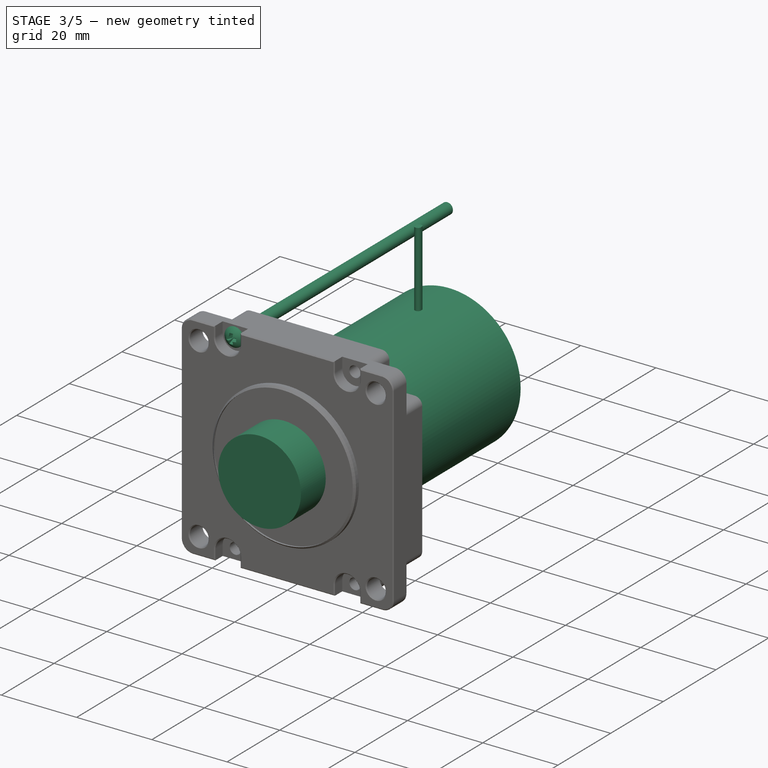
[diagram: stage 3 of 5 — iso view after this stage's code; geometry added in this stage tinted green]
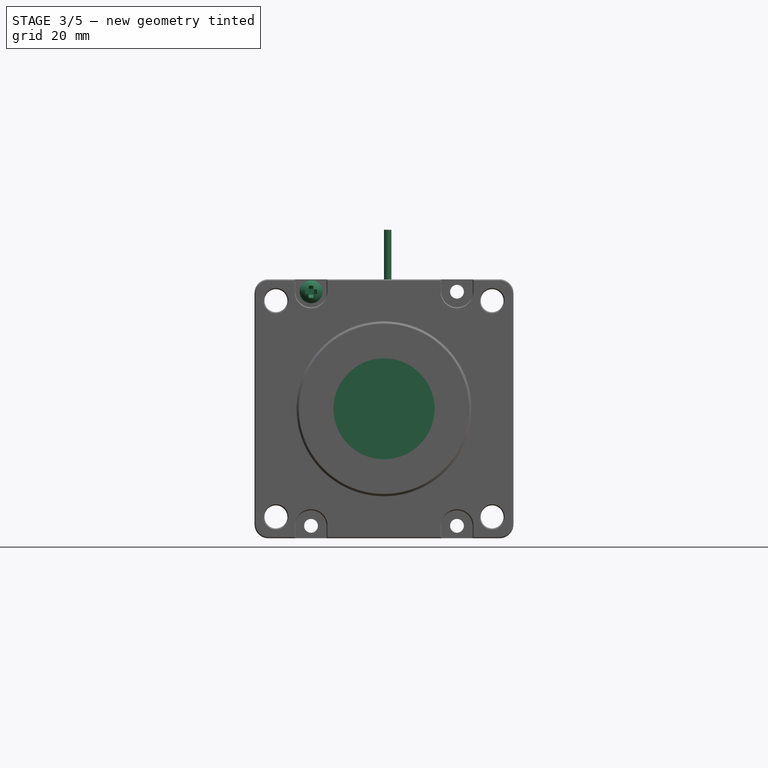
[diagram: stage 3 of 5 — front view after this stage's code; geometry added in this stage tinted green]
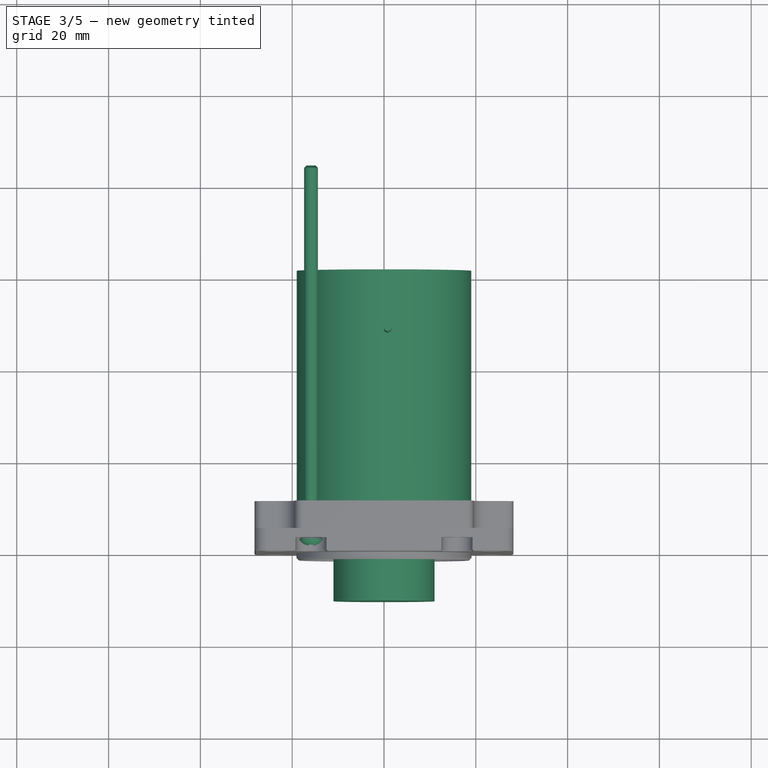
[diagram: stage 3 of 5 — top view after this stage's code; geometry added in this stage tinted green]
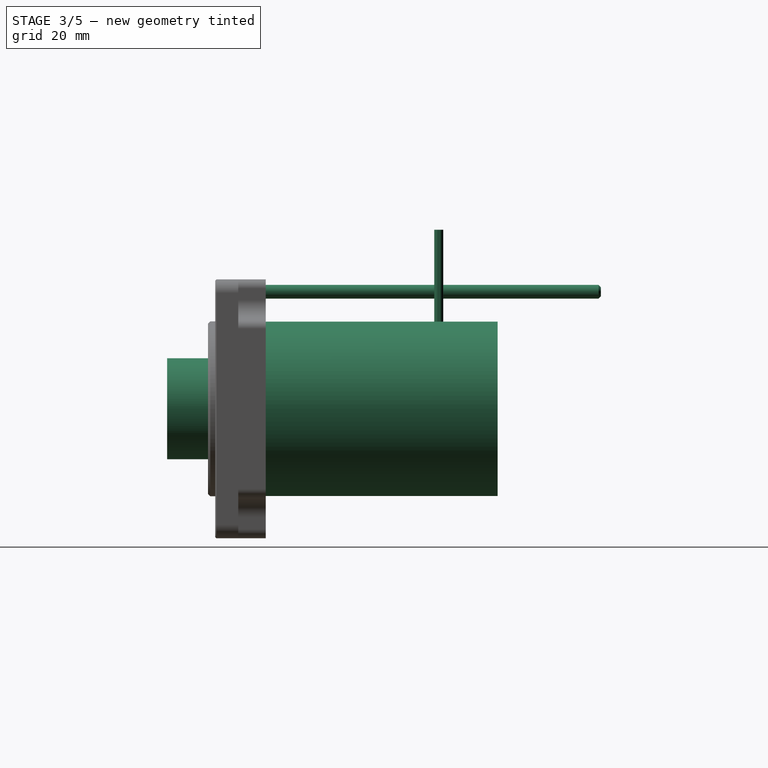
[diagram: stage 3 of 5 — right view after this stage's code; geometry added in this stage tinted green]
FEATURE [PartDesign::Body] Body002  label="Cap"
  Group = -> [Sketch013,Pad007,Sketch014,Pocket005,Sketch015,Pocket006,Sketch016,Pocket007,Sketch017,Pocket008,Chamfer]
  Origin = -> Origin002
  Placement = pos=(0,67.5,-6.8e-14) rot=(0,0,1;0rad)
  Tip = -> Chamfer
FEATURE [Sketcher::SketchObject] Sketch019
  FullyConstrained = true
  MapMode = 5
  Support = -> [XY_Plane003]
  sketch-geometry (8):
    g0: LineSegment StartX=1.5 StartY=0 StartZ=0 EndX=1.5 EndY=80.5 EndZ=0
    g1: LineSegment StartX=1.5 StartY=80.5 StartZ=0 EndX=1 EndY=81 EndZ=0
    g2: LineSegment StartX=1 StartY=81 StartZ=0 EndX=-4e-16 EndY=81 EndZ=0
    g3: LineSegment StartX=-6e-16 StartY=81 StartZ=0 EndX=-6e-16 EndY=-1.9 EndZ=0
    g4: LineSegment StartX=1.5 StartY=0 StartZ=0 EndX=2.07515 EndY=0 EndZ=0
    g5: ArcOfCircle CenterX=0 CenterY=1.1 CenterZ=0 NormalX=0 NormalY=0 NormalZ=1 AngleXU=0 Radius=3 StartAngle=4.71239 EndAngle=5.64948
    g6: LineSegment StartX=2.5 StartY=0 StartZ=0 EndX=2.5 EndY=-2 EndZ=0
    g7: ArcOfCircle CenterX=2.07515 CenterY=-0.424846 CenterZ=0 NormalX=0 NormalY=0 NormalZ=1 AngleXU=0 Radius=0.424846 StartAngle=5.64948 EndAngle=7.85398
  constraints (25):
    c: Vertical(g0)
    c: Coincident(g1,g0)
    c: Horizontal(g2)
    c: Vertical(g3)
    c: Horizontal(g4)
    c: Coincident(g0,g4)
    c: Coincident(g2,g3)
    c: Coincident(g1,g2)
    c: PointOnObject(g2,g-2)
    c: Angle(g2,g1) = 2.35619
    c: DistanceX(g2,g0) = 1.5
    c: DistanceY(g0,g1) = 0.5
    c: DistanceY(g-1,g2) = 81
    c: PointOnObject(g0,g-1)
    c: DistanceY(g3,g-1) = 1.9
    c: PointOnObject(g5,g3)
    c: Vertical(g6)
    c: DistanceX(g-1,g6) = 2.5
    c: PointOnObject(g6,g-1)
    c: Tangent(g7,g4) = 1.5708
    c: Tangent(g5,g7) = -1.5708
    c: Coincident(g5,g3)
    c: Tangent(g7,g6)
    c: Radius(g5) = 3
    c: DistanceY(g6,g6) = 2
FEATURE [PartDesign::Revolution] Revolution
  AllowMultiFace = false
  Angle = 360
  Axis = (0,1,0)
  Base = (0,0,0)
  Profile = -> Sketch019
  ReferenceAxis = -> Sketch019 [V_Axis]
  Reversed = true
FEATURE [PartDesign::Body] Body003
  Group = -> [Sketch019,Revolution]
  Origin = -> Origin003
  Tip = -> Revolution
FEATURE [Sketcher::SketchObject] Sketch020
  FullyConstrained = false
  MapMode = 5
  Support = -> [XY_Plane004]
  sketch-geometry (4):
    g0: LineSegment StartX=-2.15 StartY=-3.5 StartZ=0 EndX=2.15 EndY=-3.5 EndZ=0
    g1: LineSegment StartX=2.15 StartY=-3.5 StartZ=0 EndX=0.625 EndY=0 EndZ=0
    g2: LineSegment StartX=0.625 StartY=0 StartZ=0 EndX=-0.625 EndY=0 EndZ=0
    g3: LineSegment StartX=-0.625 StartY=0 StartZ=0 EndX=-2.15 EndY=-3.5 EndZ=0
  constraints (10):
    c: Coincident(g0,g1)
    c: Coincident(g1,g2)
    c: Coincident(g2,g3)
    c: Coincident(g3,g0)
    c: Symmetric(g2,g1,g-2)
    c: Symmetric(g0,g0,g-2)
    c: DistanceX(g0,g0) = 4.3
    c: DistanceX(g2,g1) = 1.25
    c: PointOnObject(g1,g-1)
    c: DistanceY(g0,g1) = 3.5
FEATURE [PartDesign::Pad] Pad008
  AllowMultiFace = false
  Direction = (1,1,1)
  Length = 1
  Length2 = 100
  Midplane = true
  Profile = -> Sketch020
  Type = 0
FEATURE [PartDesign::Body] Body005
  Group = -> [Sketch021,Pad009]
  Origin = -> Origin005
  Placement = pos=(0,0,0) rot=(0,-1,0;1.5708rad)
  Tip = -> Pad009
FEATURE [Part::MultiFuse] Fusion
  Shapes = -> [Body004,Body005]
FEATURE [Part::Cut] Cut  label="Screw Primative"
  Base = -> Body003
  Placement = pos=(-15.9,3,25.5) rot=(0,0,1;0rad)
  Tool = -> Fusion
FEATURE [PartDesign::Body] Body009  label="Strain Relief"
  Group = -> [Sketch022,Pad010,Sketch023,Pad011,Sketch024,Pocket010]
  Origin = -> Origin009
  Placement = pos=(-6.63e-13,72.5,28.2) rot=(0,0,1;0rad)
  Tip = -> Pocket010
FEATURE [Sketcher::SketchObject] Sketch025
  FullyConstrained = false
  MapMode = 5
  Placement = pos=(0,0,0) rot=(1,0,0;1.5708rad)
  Support = -> [XZ_Plane010]
  sketch-geometry (1):
    g0: Circle CenterX=0 CenterY=0 CenterZ=0 NormalX=0 NormalY=0 NormalZ=1 AngleXU=0 Radius=19
  constraints (2):
    c: Coincident(g0,g-1)
    c: Radius(g0) = 19
FEATURE [PartDesign::Pad] Pad012
  AllowMultiFace = false
  Direction = (0,-1,-2e-16)
  Length = 61.5
  Length2 = 100
  Placement = pos=(0,0,0) rot=(1,0,0;1.5708rad)
  Profile = -> Sketch025
  ReferenceAxis = -> Sketch025 [N_Axis]
  Reversed = true
  Type = 0
FEATURE [Sketcher::SketchObject] Sketch026
  FullyConstrained = true
  MapMode = 5
  Placement = pos=(0,0,0) rot=(1,0,0;1.5708rad)
  Support = -> [Pad012]
  sketch-geometry (1):
    g0: Circle CenterX=0 CenterY=0 CenterZ=0 NormalX=0 NormalY=0 NormalZ=1 AngleXU=0 Radius=11
  constraints (2):
    c: Coincident(g0,g-1)
    c: Radius(g0) = 11
FEATURE [PartDesign::Pad] Pad013
  AllowMultiFace = false
  BaseFeature = -> Pad012
  Direction = (0,-1,-2e-16)
  Length = 10.5
  Length2 = 100
  Placement = pos=(0,0,0) rot=(1,0,0;1.5708rad)
  Profile = -> Sketch026
  Type = 0
FEATURE [PartDesign::Body] Body011  label="Wire "
  Group = -> [Sketch034,Pad018]
  Origin = -> Origin011
  Placement = pos=(0.8,48.85,19) rot=(0,0,1;0rad)
  Tip = -> Pad018
FEATURE [PartDesign::FeatureBase] Clone005
  BaseFeature = -> Body011
  Placement = pos=(0.8,48.5,19) rot=(0,0,1;0rad)
FEATURE [PartDesign::Body] Body014  label="Wire - Black"
  BaseFeature = -> Body011
  Group = -> [Clone005]
  Origin = -> Origin014
  Placement = pos=(0,28.75,-6.8e-14) rot=(0,0,1;0rad)
  Tip = -> Clone005
FEATURE [PartDesign::FeatureBase] Clone006
  BaseFeature = -> Cut
  Placement = pos=(-15.9,3,25.5) rot=(0,0,1;0rad)
FEATURE [PartDesign::Body] Body015  label="Screw 1"
  BaseFeature = -> Cut
  Group = -> [Clone006]
  Origin = -> Origin015
  Tip = -> Clone006
FEATURE [PartDesign::FeatureBase] Clone007
  BaseFeature = -> Body011
  Placement = pos=(0.8,48.85,19) rot=(0,0,1;0rad)
FEATURE [PartDesign::Body] Body016  label="Wire - Green"
  BaseFeature = -> Body011
  Group = -> [Clone007]
  Origin = -> Origin016
  Placement = pos=(-1.6,28.4,-6.7e-14) rot=(0,0,1;0rad)
  Tip = -> Clone007
FEATURE [PartDesign::FeatureBase] Clone008
  BaseFeature = -> Body011
  Placement = pos=(0.8,48.85,19) rot=(0,0,1;0rad)
FEATURE [PartDesign::Body] Body017  label="Wire - Blue"
  BaseFeature = -> Body011
  Group = -> [Clone008]
  Origin = -> Origin017
  Placement = pos=(-1.6,30,-6.8e-14) rot=(0,0,1;0rad)
  Tip = -> Clone008
FEATURE [PartDesign::FeatureBase] Clone009
  BaseFeature = -> Body011
  Placement = pos=(0.8,48.85,19) rot=(0,0,1;0rad)
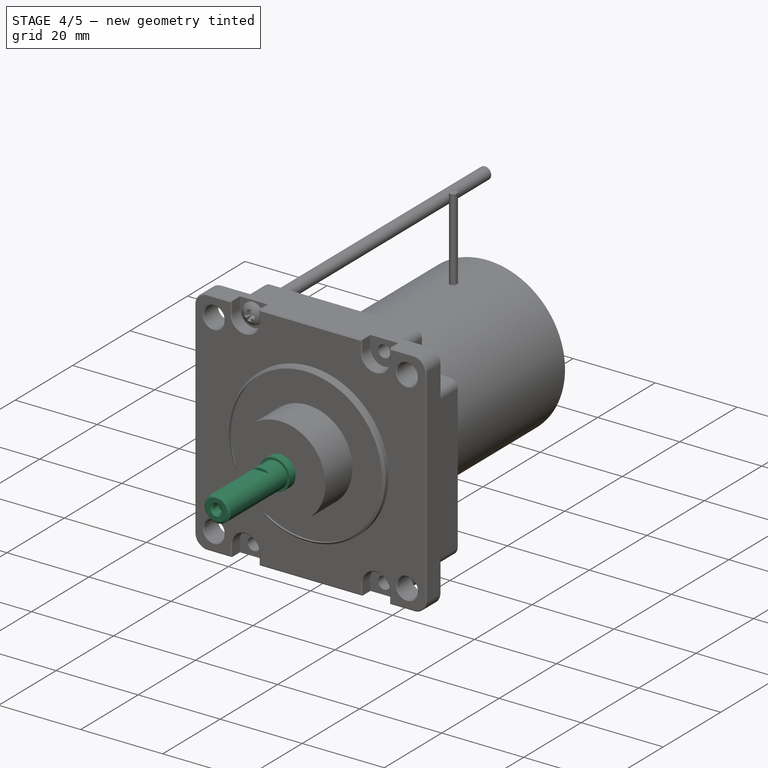
[diagram: stage 4 of 5 — iso view after this stage's code; geometry added in this stage tinted green]
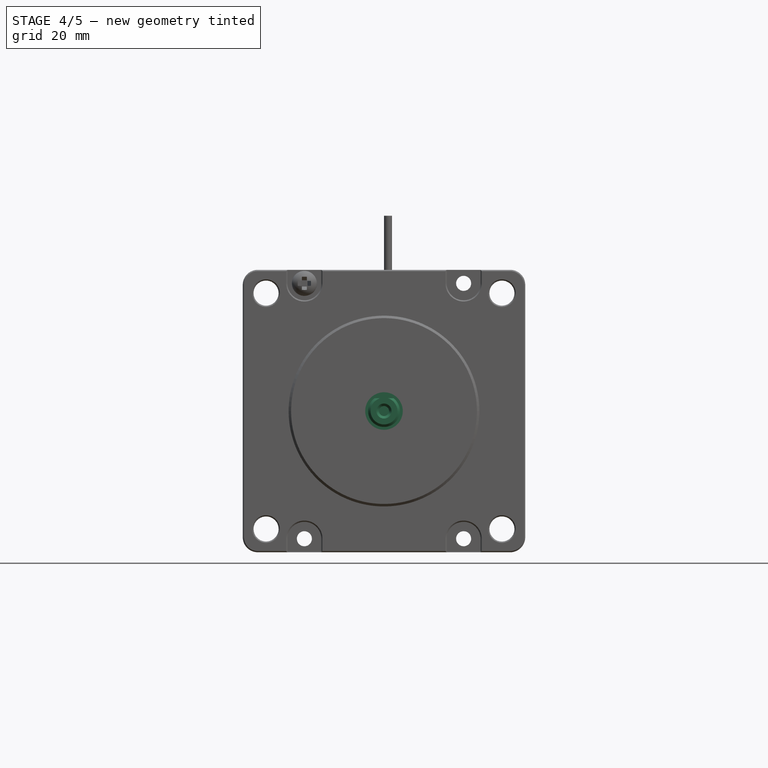
[diagram: stage 4 of 5 — front view after this stage's code; geometry added in this stage tinted green]
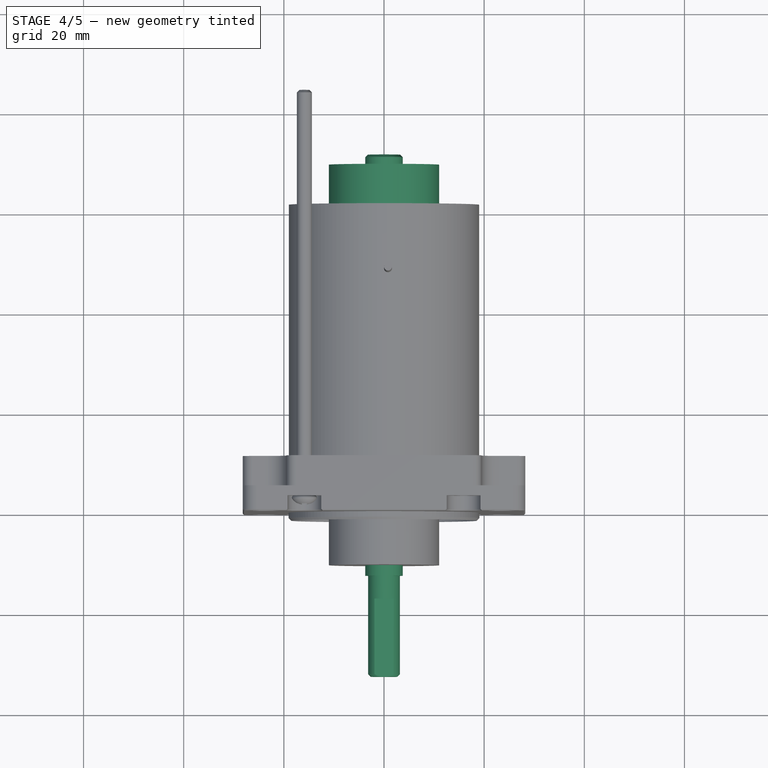
[diagram: stage 4 of 5 — top view after this stage's code; geometry added in this stage tinted green]
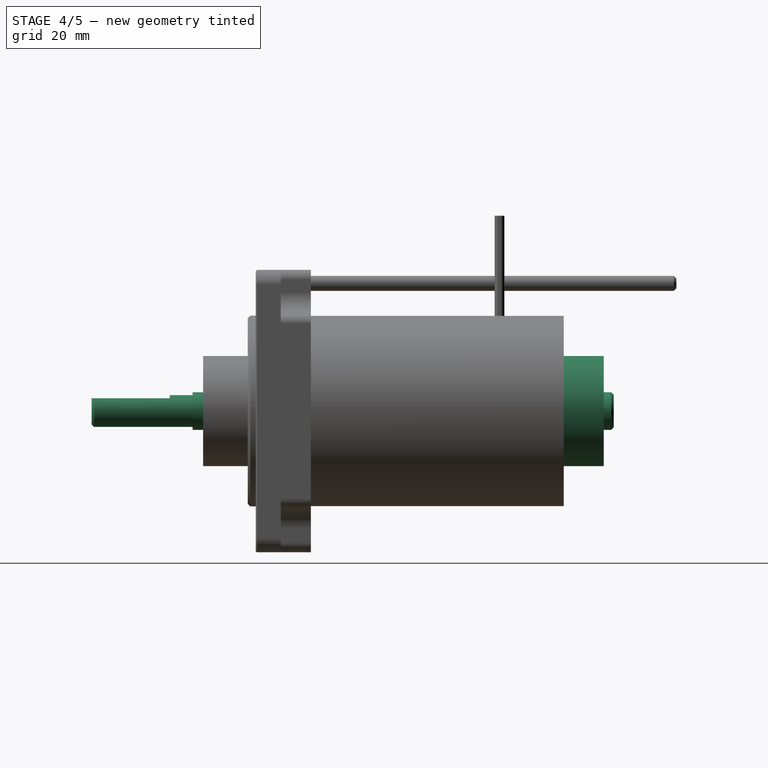
[diagram: stage 4 of 5 — right view after this stage's code; geometry added in this stage tinted green]
FEATURE [PartDesign::Body] Body008  label="Screw 4"
  BaseFeature = -> Cut
  Group = -> [Clone002]
  Origin = -> Origin008
  Placement = pos=(15.9,0,-25.5) rot=(0,0,1;0rad)
  Tip = -> Clone002
FEATURE [Sketcher::SketchObject] Sketch022
  FullyConstrained = false
  MapMode = 5
  Support = -> [XY_Plane009]
  sketch-geometry (4):
    g0: LineSegment StartX=-5.75 StartY=11.5 StartZ=0 EndX=5.75 EndY=11.5 EndZ=0
    g1: LineSegment StartX=5.75 StartY=11.5 StartZ=0 EndX=5.75 EndY=0 EndZ=0
    g2: LineSegment StartX=5.75 StartY=0 StartZ=0 EndX=-5.75 EndY=0 EndZ=0
    g3: LineSegment StartX=-5.75 StartY=0 StartZ=0 EndX=-5.75 EndY=11.5 EndZ=0
  constraints (12):
    c: Coincident(g0,g1)
    c: Coincident(g1,g2)
    c: Coincident(g2,g3)
    c: Coincident(g3,g0)
    c: Horizontal(g0)
    c: Horizontal(g2)
    c: Vertical(g1)
    c: Vertical(g3)
    c: PointOnObject(g1,g-1)
    c: DistanceX(g0,g0) = 11.5
    c: DistanceY(g1,g0) = 11.5
    c: DistanceX(g2,g-1) = 5.75
FEATURE [PartDesign::Pad] Pad010
  AllowMultiFace = false
  Direction = (1,1,1)
  Length = 1
  Length2 = 100
  Profile = -> Sketch022
  Type = 0
FEATURE [Sketcher::SketchObject] Sketch023
  FullyConstrained = false
  MapMode = 5
  Placement = pos=(0,0,0) rot=(1,0,0;3.14159rad)
  Support = -> [Pad010]
  sketch-geometry (4):
    g0: LineSegment StartX=-3 StartY=-5.5 StartZ=0 EndX=-3 EndY=0 EndZ=0
    g1: LineSegment StartX=-3 StartY=0 StartZ=0 EndX=3 EndY=0 EndZ=0
    g2: LineSegment StartX=3 StartY=0 StartZ=0 EndX=3 EndY=-5.5 EndZ=0
    g3: ArcOfCircle CenterX=0 CenterY=-5.5 CenterZ=0 NormalX=0 NormalY=0 NormalZ=1 AngleXU=0 Radius=3 StartAngle=3.14159 EndAngle=6.28319
  constraints (11):
    c: Vertical(g0)
    c: Coincident(g0,g1)
    c: Horizontal(g1)
    c: Coincident(g1,g2)
    c: Vertical(g2)
    c: PointOnObject(g3,g-2)
    c: Tangent(g0,g3) = 1.5708
    c: Tangent(g2,g3) = 1.5708
    c: PointOnObject(g1,g-1)
    c: Radius(g3) = 3
    c: DistanceY(g3,g-1) = 5.5
FEATURE [PartDesign::Pad] Pad011
  AllowMultiFace = false
  BaseFeature = -> Pad010
  Direction = (1,1,1)
  Length = 10
  Length2 = 100
  Profile = -> Sketch023
  Type = 0
FEATURE [Sketcher::SketchObject] Sketch024
  ExternalGeometry = -> [Pad011]
  FullyConstrained = false
  MapMode = 5
  Placement = pos=(0,0,-10) rot=(1,0,0;3.14159rad)
  Support = -> [Pad011]
  sketch-geometry (1):
    g0: Circle CenterX=0 CenterY=-5.5 CenterZ=0 NormalX=0 NormalY=0 NormalZ=1 AngleXU=0 Radius=1.75
  constraints (2):
    c: Coincident(g0,g-3)
    c: Radius(g0) = 1.75
FEATURE [PartDesign::Pocket] Pocket010
  AllowMultiFace = false
  BaseFeature = -> Pad011
  Direction = (1,1,1)
  Length = 5
  Length2 = 100
  Profile = -> Sketch024
  Type = 1
FEATURE [Sketcher::SketchObject] Sketch027
  FullyConstrained = true
  MapMode = 5
  Placement = pos=(0,61.5,-1e-16) rot=(-1,0,0;1.5708rad)
  Support = -> [Pad013]
  sketch-geometry (1):
    g0: Circle CenterX=0 CenterY=0 CenterZ=0 NormalX=0 NormalY=0 NormalZ=1 AngleXU=0 Radius=11
  constraints (2):
    c: Coincident(g0,g-1)
    c: Radius(g0) = 11
FEATURE [PartDesign::Pad] Pad014
  AllowMultiFace = false
  BaseFeature = -> Pad013
  Direction = (0,1,2e-16)
  Length = 8
  Length2 = 100
  Placement = pos=(0,0,0) rot=(1,0,0;1.5708rad)
  Profile = -> Sketch027
  Type = 0
FEATURE [Sketcher::SketchObject] Sketch028
  FullyConstrained = true
  MapMode = 5
  Placement = pos=(0,69.5,-1.54e-14) rot=(-1,0,0;1.5708rad)
  Support = -> [Pad014]
  sketch-geometry (1):
    g0: Circle CenterX=0 CenterY=0 CenterZ=0 NormalX=0 NormalY=0 NormalZ=1 AngleXU=0 Radius=3.75
  constraints (2):
    c: Coincident(g0,g-1)
    c: Radius(g0) = 3.75
FEATURE [PartDesign::Pad] Pad015
  AllowMultiFace = false
  BaseFeature = -> Pad014
  Direction = (0,1,2e-16)
  Length = 2
  Length2 = 100
  Placement = pos=(0,0,0) rot=(1,0,0;1.5708rad)
  Profile = -> Sketch028
  Type = 0
FEATURE [Sketcher::SketchObject] Sketch029
  FullyConstrained = true
  MapMode = 5
  Placement = pos=(0,71.5,-1.59e-14) rot=(-1,0,0;1.5708rad)
  Support = -> [Pad015]
  sketch-geometry (1):
    g0: Circle CenterX=0 CenterY=0 CenterZ=0 NormalX=0 NormalY=0 NormalZ=1 AngleXU=0 Radius=1
  constraints (2):
    c: Coincident(g0,g-1)
    c: Radius(g0) = 1
FEATURE [PartDesign::Pocket] Pocket011
  AllowMultiFace = false
  BaseFeature = -> Pad015
  Direction = (0,-1,-2e-16)
  Length = 2
  Length2 = 100
  Placement = pos=(0,0,0) rot=(1,0,0;1.5708rad)
  Profile = -> Sketch029
  Type = 0
FEATURE [PartDesign::Chamfer] Chamfer002
  Angle = 45
  Base = -> Pocket011 [Edge12,Edge13]
  BaseFeature = -> Pocket011
  ChamferType = 0
  FlipDirection = false
  Placement = pos=(0,0,0) rot=(1,0,0;1.5708rad)
  Size = 0.5
  Size2 = 1
  SupportTransform = false
  UseAllEdges = false
FEATURE [Sketcher::SketchObject] Sketch030
  FullyConstrained = true
  MapMode = 5
  Placement = pos=(0,-10.5,0) rot=(1,0,0;1.5708rad)
  Support = -> [Chamfer002]
  sketch-geometry (1):
    g0: Circle CenterX=0 CenterY=0 CenterZ=0 NormalX=0 NormalY=0 NormalZ=1 AngleXU=0 Radius=3.75
  constraints (2):
    c: Coincident(g0,g-1)
    c: Radius(g0) = 3.75
FEATURE [PartDesign::Pad] Pad016
  AllowMultiFace = false
  BaseFeature = -> Chamfer002
  Direction = (0,-1,-2e-16)
  Length = 2.1
  Length2 = 100
  Placement = pos=(0,0,0) rot=(1,0,0;1.5708rad)
  Profile = -> Sketch030
  Type = 0
FEATURE [Sketcher::SketchObject] Sketch031
  FullyConstrained = true
  MapMode = 5
  Placement = pos=(0,-12.6,2.8e-15) rot=(1,0,0;1.5708rad)
  Support = -> [Pad016]
  sketch-geometry (1):
    g0: Circle CenterX=0 CenterY=0 CenterZ=0 NormalX=0 NormalY=0 NormalZ=1 AngleXU=0 Radius=3.175
  constraints (2):
    c: Coincident(g0,g-1)
    c: Radius(g0) = 3.175
FEATURE [PartDesign::Pad] Pad017
  AllowMultiFace = false
  BaseFeature = -> Pad016
  Direction = (0,-1,2e-16)
  Length = 20.18
  Length2 = 100
  Placement = pos=(0,0,0) rot=(1,0,0;1.5708rad)
  Profile = -> Sketch031
  Type = 0
FEATURE [Sketcher::SketchObject] Sketch032
  FullyConstrained = true
  MapMode = 5
  Placement = pos=(0,-32.78,7.3e-15) rot=(1,0,0;1.5708rad)
  Support = -> [Pad017]
  sketch-geometry (2):
    g0: LineSegment StartX=-1.89832 StartY=2.545 StartZ=0 EndX=1.89832 EndY=2.545 EndZ=0
    g1: ArcOfCircle CenterX=0 CenterY=0 CenterZ=0 NormalX=0 NormalY=0 NormalZ=1 AngleXU=0 Radius=3.175 StartAngle=0.929925 EndAngle=2.21167
  constraints (6):
    c: Horizontal(g0)
    c: Coincident(g1,g0)
    c: Coincident(g0,g1)
    c: Coincident(g1,g-1)
    c: Radius(g1) = 3.175
    c: DistanceY(g1,g0) = 2.545
FEATURE [PartDesign::Pocket] Pocket012
  AllowMultiFace = false
  BaseFeature = -> Pad017
  Direction = (0,1,-2e-16)
  Length = 15.6
  Length2 = 100
  Placement = pos=(0,0,0) rot=(1,0,0;1.5708rad)
  Profile = -> Sketch032
  Type = 0
FEATURE [Sketcher::SketchObject] Sketch033
  FullyConstrained = true
  MapMode = 5
  Placement = pos=(0,-32.78,7.3e-15) rot=(1,0,0;1.5708rad)
  Support = -> [Pocket012]
  sketch-geometry (1):
    g0: Circle CenterX=0 CenterY=0 CenterZ=0 NormalX=0 NormalY=0 NormalZ=1 AngleXU=0 Radius=1
  constraints (2):
    c: Coincident(g0,g-1)
    c: Radius(g0) = 1
FEATURE [PartDesign::Pocket] Pocket013
  AllowMultiFace = false
  BaseFeature = -> Pocket012
  Direction = (0,1,-2e-16)
  Length = 2
  Length2 = 100
  Placement = pos=(0,0,0) rot=(1,0,0;1.5708rad)
  Profile = -> Sketch033
  Type = 0
FEATURE [PartDesign::Chamfer] Chamfer003
  Angle = 45
  Base = -> Pocket013 [Edge31,Edge25,Edge29]
  BaseFeature = -> Pocket013
  ChamferType = 0
  FlipDirection = false
  Placement = pos=(0,0,0) rot=(1,0,0;1.5708rad)
  Size = 0.5
  Size2 = 1
  SupportTransform = false
  UseAllEdges = false
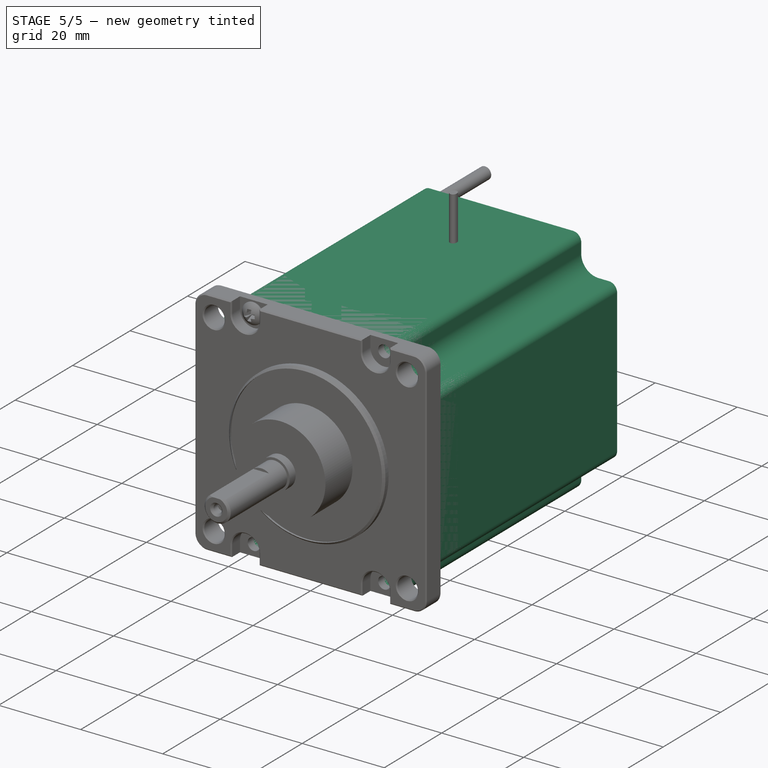
[diagram: stage 5 of 5 — iso view after this stage's code; geometry added in this stage tinted green]
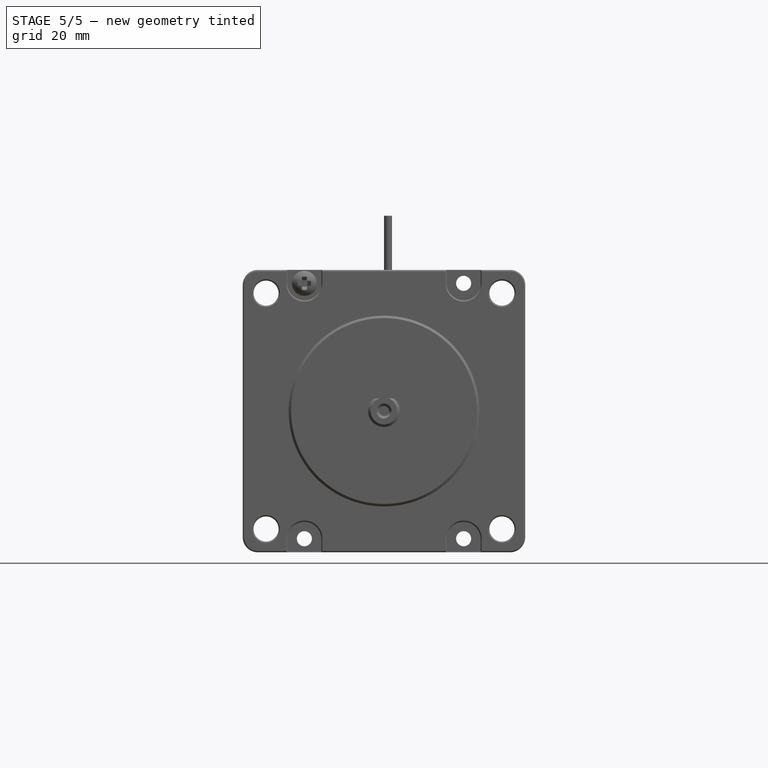
[diagram: stage 5 of 5 — front view after this stage's code; geometry added in this stage tinted green]
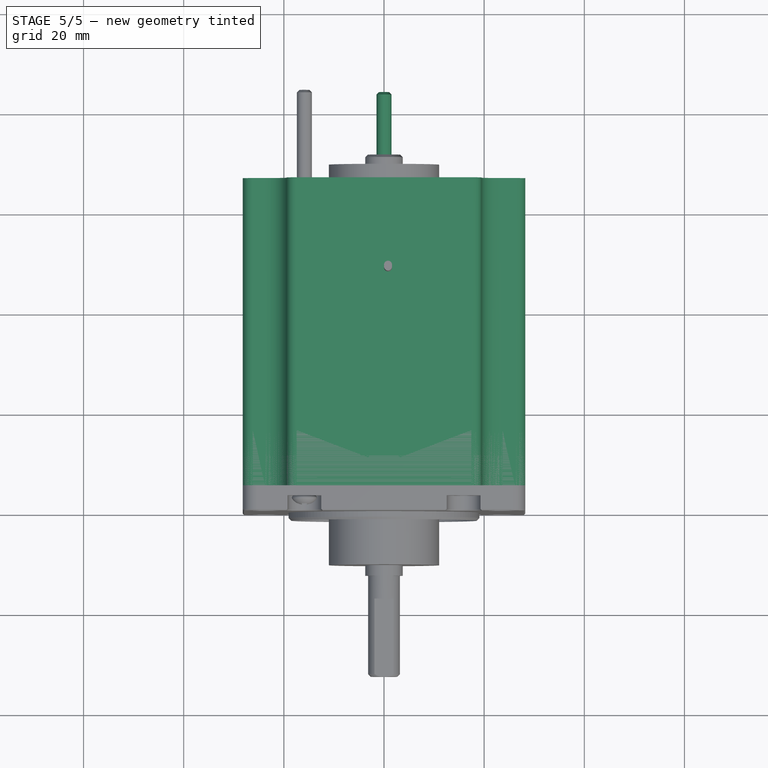
[diagram: stage 5 of 5 — top view after this stage's code; geometry added in this stage tinted green]
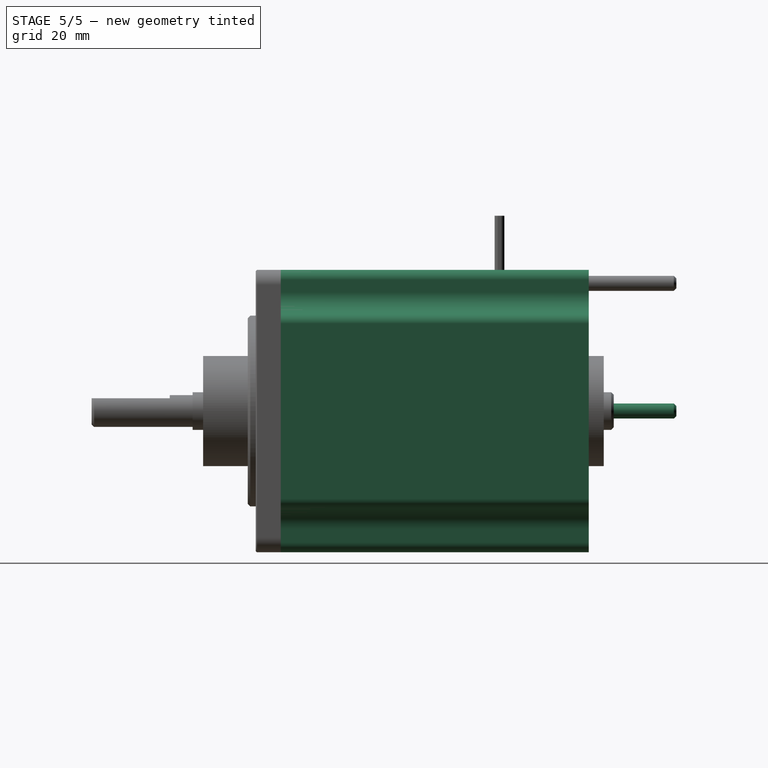
[diagram: stage 5 of 5 — right view after this stage's code; geometry added in this stage tinted green]
FEATURE [Sketcher::SketchObject] Sketch009
  FullyConstrained = false
  MapMode = 5
  Placement = pos=(0,5,-8e-15) rot=(-1,0,0;1.5708rad)
  sketch-geometry (25):
    g0: LineSegment StartX=-26.2 StartY=19.45 StartZ=0 EndX=-23.7 EndY=19.45 EndZ=0
    g1: LineSegment StartX=-19.45 StartY=23.7 StartZ=0 EndX=-19.45 EndY=26.2 EndZ=0
    g2: LineSegment StartX=19.45 StartY=26.2 StartZ=0 EndX=19.45 EndY=23.7 EndZ=0
    g3: LineSegment StartX=23.7 StartY=19.45 StartZ=0 EndX=26.2 EndY=19.45 EndZ=0
    g4: LineSegment StartX=19.45 StartY=-26.2 StartZ=0 EndX=19.45 EndY=-23.7 EndZ=0
    g5: LineSegment StartX=23.7 StartY=-19.45 StartZ=0 EndX=26.2 EndY=-19.45 EndZ=0
    g6: LineSegment StartX=-26.2 StartY=-19.45 StartZ=0 EndX=-23.7 EndY=-19.45 EndZ=0
    g7: LineSegment StartX=-19.45 StartY=-26.2 StartZ=0 EndX=-19.45 EndY=-23.7 EndZ=0
    g8: LineSegment StartX=-28.2 StartY=17.45 StartZ=0 EndX=-28.2 EndY=-17.45 EndZ=0
    g9: LineSegment StartX=-17.45 StartY=28.2 StartZ=0 EndX=17.45 EndY=28.2 EndZ=0
    g10: LineSegment StartX=28.2 StartY=17.45 StartZ=0 EndX=28.2 EndY=-17.45 EndZ=0
    g11: LineSegment StartX=-17.45 StartY=-28.2 StartZ=0 EndX=17.45 EndY=-28.2 EndZ=0
    g12: ArcOfCircle CenterX=-17.45 CenterY=26.2 CenterZ=0 NormalX=0 NormalY=0 NormalZ=1 AngleXU=0 Radius=2 StartAngle=1.5708 EndAngle=3.14159
    g13: ArcOfCircle CenterX=-23.7 CenterY=23.7 CenterZ=0 NormalX=0 NormalY=0 NormalZ=1 AngleXU=0 Radius=4.25 StartAngle=4.71239 EndAngle=6.28319
    g14: ArcOfCircle CenterX=-26.2 CenterY=17.45 CenterZ=0 NormalX=0 NormalY=0 NormalZ=1 AngleXU=0 Radius=2 StartAngle=1.5708 EndAngle=3.14159
    g15: ArcOfCircle CenterX=17.45 CenterY=26.2 CenterZ=0 NormalX=0 NormalY=0 NormalZ=1 AngleXU=0 Radius=2 StartAngle=2e-16 EndAngle=1.5708
    g16: ArcOfCircle CenterX=23.7 CenterY=23.7 CenterZ=0 NormalX=0 NormalY=0 NormalZ=1 AngleXU=0 Radius=4.25 StartAngle=3.14159 EndAngle=4.71239
    g17: ArcOfCircle CenterX=26.2 CenterY=17.45 CenterZ=0 NormalX=0 NormalY=0 NormalZ=1 AngleXU=0 Radius=2 StartAngle=0 EndAngle=1.5708
    g18: ArcOfCircle CenterX=-26.2 CenterY=-17.45 CenterZ=0 NormalX=0 NormalY=0 NormalZ=1 AngleXU=0 Radius=2 StartAngle=3.14159 EndAngle=4.71239
    g19: ArcOfCircle CenterX=-23.7 CenterY=-23.7 CenterZ=0 NormalX=0 NormalY=0 NormalZ=1 AngleXU=0 Radius=4.25 StartAngle=4e-16 EndAngle=1.5708
    g20: ArcOfCircle CenterX=-17.45 CenterY=-26.2 CenterZ=0 NormalX=0 NormalY=0 NormalZ=1 AngleXU=0 Radius=2 StartAngle=3.14159 EndAngle=4.71239
    g21: ArcOfCircle CenterX=26.2 CenterY=-17.45 CenterZ=0 NormalX=0 NormalY=0 NormalZ=1 AngleXU=0 Radius=2 StartAngle=4.71239 EndAngle=6.28319
    g22: ArcOfCircle CenterX=23.7 CenterY=-23.7 CenterZ=0 NormalX=0 NormalY=0 NormalZ=1 AngleXU=0 Radius=4.25 StartAngle=1.5708 EndAngle=3.14159
    g23: ArcOfCircle CenterX=17.45 CenterY=-26.2 CenterZ=0 NormalX=0 NormalY=0 NormalZ=1 AngleXU=0 Radius=2 StartAngle=4.71239 EndAngle=6.28319
    g24: Circle CenterX=0 CenterY=0 CenterZ=0 NormalX=0 NormalY=0 NormalZ=1 AngleXU=0 Radius=20
  constraints (60):
    c: Horizontal(g0)
    c: Vertical(g2)
    c: Horizontal(g3)
    c: Vertical(g4)
    c: Horizontal(g5)
    c: Horizontal(g6)
    c: Vertical(g7)
    c: Vertical(g8)
    c: Vertical(g10)
    c: Tangent(g0,g13) = -1.5708
    c: Tangent(g13,g1) = -1.5708
    c: Tangent(g1,g12) = 1.5708
    c: Tangent(g8,g14) = -1.5708
    c: Tangent(g0,g14) = 1.5708
    c: Tangent(g9,g12) = 1.5708
    c: Vertical(g1)
    c: Tangent(g9,g15) = 1.5708
    c: Tangent(g2,g15) = 1.5708
    c: Tangent(g3,g16) = -1.5708
    c: Tangent(g2,g16) = -1.5708
    c: Tangent(g3,g17) = 1.5708
    c: Tangent(g10,g17) = 1.5708
    c: Tangent(g11,g20) = -1.5708
    c: Tangent(g7,g20) = 1.5708
    c: Tangent(g7,g19) = -1.5708
    c: Tangent(g6,g19) = 1.5708
    c: Tangent(g6,g18) = -1.5708
    c: Tangent(g18,g8) = -1.5708
    c: Tangent(g4,g23) = -1.5708
    c: Tangent(g4,g22) = 1.5708
    c: Tangent(g5,g22) = 1.5708
    c: Tangent(g5,g21) = -1.5708
    c: Tangent(g10,g21) = 1.5708
    c: Tangent(g11,g23) = -1.5708
    c: Equal(g17,g15)
    c: Equal(g15,g12)
    c: Equal(g12,g14)
    c: Equal(g14,g18)
    c: Equal(g18,g20)
    c: Equal(g20,g23)
    c: Equal(g23,g21)
    c: Radius(g14) = 2
    c: Radius(g13) = 4.25
    c: Equal(g13,g16)
    c: Equal(g16,g22)
    c: Equal(g22,g19)
    c: Equal(g6,g0)
    c: Equal(g1,g7)
    c: Equal(g4,g7)
    c: Equal(g5,g6)
    c: Equal(g3,g5)
    c: Equal(g2,g1)
    c: DistanceY(g0,g9) = 8.75
    c: DistanceX(g8,g1) = 8.75
    c: DistanceY(g11,g9) = 56.4
    c: DistanceX(g8,g10) = 56.4
    c: Coincident(g24,g-1)
    c: Radius(g24) = 20
    c: Symmetric(g8,g10,g-2)
    c: Symmetric(g9,g11,g-1)
FEATURE [PartDesign::Pad] Pad006
  AllowMultiFace = false
  Direction = (0,1,-1.1e-15)
  Length = 61.5
  Length2 = 100
  Placement = pos=(0,5,-8e-15) rot=(-1,0,0;1.5708rad)
  Profile = -> Sketch009
  ReferenceAxis = -> Sketch009 [N_Axis]
  Type = 0
FEATURE [Sketcher::SketchObject] Sketch008
  FullyConstrained = true
  MapMode = 5
  Placement = pos=(0,66.5,-7.01e-14) rot=(-1,0,0;1.5708rad)
  Support = -> [Pad006]
  sketch-geometry (8):
    g0: LineSegment StartX=-15.9 StartY=25.5 StartZ=0 EndX=15.9 EndY=25.5 EndZ=0
    g1: LineSegment StartX=15.9 StartY=25.5 StartZ=0 EndX=15.9 EndY=-25.5 EndZ=0
    g2: LineSegment StartX=15.9 StartY=-25.5 StartZ=0 EndX=-15.9 EndY=-25.5 EndZ=0
    g3: LineSegment StartX=-15.9 StartY=-25.5 StartZ=0 EndX=-15.9 EndY=25.5 EndZ=0
    g4: Circle CenterX=-15.9 CenterY=25.5 CenterZ=0 NormalX=0 NormalY=0 NormalZ=1 AngleXU=0 Radius=1.5
    g5: Circle CenterX=15.9 CenterY=25.5 CenterZ=0 NormalX=0 NormalY=0 NormalZ=1 AngleXU=0 Radius=1.5
    g6: Circle CenterX=-15.9 CenterY=-25.5 CenterZ=0 NormalX=0 NormalY=0 NormalZ=1 AngleXU=0 Radius=1.5
    g7: Circle CenterX=15.9 CenterY=-25.5 CenterZ=0 NormalX=0 NormalY=0 NormalZ=1 AngleXU=0 Radius=1.5
  constraints (17):
    c: Coincident(g0,g1)
    c: Coincident(g1,g2)
    c: Coincident(g2,g3)
    c: Coincident(g3,g0)
    c: Equal(g3,g1)
    c: Symmetric(g2,g0,g-1)
    c: Symmetric(g0,g1,g-1)
    c: Symmetric(g0,g0,g-2)
    c: DistanceX(g0,g0) = 31.8
    c: DistanceY(g1,g0) = 51
    c: Coincident(g1,g7)
    c: Coincident(g5,g0)
    c: Coincident(g0,g4)
    c: Coincident(g6,g2)
    c: Equal(g6,g7)
    c: Equal(g7,g5)
    c: Equal(g5,g4)
FEATURE [PartDesign::Pocket] Pocket002
  AllowMultiFace = false
  BaseFeature = -> Pad006
  Direction = (0,-1,1.1e-15)
  Length = 5
  Length2 = 100
  Placement = pos=(0,5,-8e-15) rot=(-1,0,0;1.5708rad)
  Profile = -> Sketch008
  Type = 1
FEATURE [Sketcher::SketchObject] Sketch013
  FullyConstrained = false
  MapMode = 5
  Placement = pos=(0,5,-8e-15) rot=(-1,0,0;1.5708rad)
  sketch-geometry (24):
    g0: LineSegment StartX=-26.2 StartY=19.45 StartZ=0 EndX=-23.7 EndY=19.45 EndZ=0
    g1: LineSegment StartX=-19.45 StartY=23.7 StartZ=0 EndX=-19.45 EndY=26.2 EndZ=0
    g2: LineSegment StartX=19.45 StartY=26.2 StartZ=0 EndX=19.45 EndY=23.7 EndZ=0
    g3: LineSegment StartX=23.7 StartY=19.45 StartZ=0 EndX=26.2 EndY=19.45 EndZ=0
    g4: LineSegment StartX=19.45 StartY=-26.2 StartZ=0 EndX=19.45 EndY=-23.7 EndZ=0
    g5: LineSegment StartX=23.7 StartY=-19.45 StartZ=0 EndX=26.2 EndY=-19.45 EndZ=0
    g6: LineSegment StartX=-26.2 StartY=-19.45 StartZ=0 EndX=-23.7 EndY=-19.45 EndZ=0
    g7: LineSegment StartX=-19.45 StartY=-26.2 StartZ=0 EndX=-19.45 EndY=-23.7 EndZ=0
    g8: LineSegment StartX=-28.2 StartY=17.45 StartZ=0 EndX=-28.2 EndY=-17.45 EndZ=0
    g9: LineSegment StartX=-17.45 StartY=28.2 StartZ=0 EndX=17.45 EndY=28.2 EndZ=0
    g10: LineSegment StartX=28.2 StartY=17.45 StartZ=0 EndX=28.2 EndY=-17.45 EndZ=0
    g11: LineSegment StartX=-17.45 StartY=-28.2 StartZ=0 EndX=17.45 EndY=-28.2 EndZ=0
    g12: ArcOfCircle CenterX=-17.45 CenterY=26.2 CenterZ=0 NormalX=0 NormalY=0 NormalZ=1 AngleXU=0 Radius=2 StartAngle=1.5708 EndAngle=3.14159
    g13: ArcOfCircle CenterX=-23.7 CenterY=23.7 CenterZ=0 NormalX=0 NormalY=0 NormalZ=1 AngleXU=0 Radius=4.25 StartAngle=4.71239 EndAngle=6.28319
    g14: ArcOfCircle CenterX=-26.2 CenterY=17.45 CenterZ=0 NormalX=0 NormalY=0 NormalZ=1 AngleXU=0 Radius=2 StartAngle=1.5708 EndAngle=3.14159
    g15: ArcOfCircle CenterX=17.45 CenterY=26.2 CenterZ=0 NormalX=0 NormalY=0 NormalZ=1 AngleXU=0 Radius=2 StartAngle=2e-16 EndAngle=1.5708
    g16: ArcOfCircle CenterX=23.7 CenterY=23.7 CenterZ=0 NormalX=0 NormalY=0 NormalZ=1 AngleXU=0 Radius=4.25 StartAngle=3.14159 EndAngle=4.71239
    g17: ArcOfCircle CenterX=26.2 CenterY=17.45 CenterZ=0 NormalX=0 NormalY=0 NormalZ=1 AngleXU=0 Radius=2 StartAngle=0 EndAngle=1.5708
    g18: ArcOfCircle CenterX=-26.2 CenterY=-17.45 CenterZ=0 NormalX=0 NormalY=0 NormalZ=1 AngleXU=0 Radius=2 StartAngle=3.14159 EndAngle=4.71239
    g19: ArcOfCircle CenterX=-23.7 CenterY=-23.7 CenterZ=0 NormalX=0 NormalY=0 NormalZ=1 AngleXU=0 Radius=4.25 StartAngle=4e-16 EndAngle=1.5708
    g20: ArcOfCircle CenterX=-17.45 CenterY=-26.2 CenterZ=0 NormalX=0 NormalY=0 NormalZ=1 AngleXU=0 Radius=2 StartAngle=3.14159 EndAngle=4.71239
    g21: ArcOfCircle CenterX=26.2 CenterY=-17.45 CenterZ=0 NormalX=0 NormalY=0 NormalZ=1 AngleXU=0 Radius=2 StartAngle=4.71239 EndAngle=6.28319
    g22: ArcOfCircle CenterX=23.7 CenterY=-23.7 CenterZ=0 NormalX=0 NormalY=0 NormalZ=1 AngleXU=0 Radius=4.25 StartAngle=1.5708 EndAngle=3.14159
    g23: ArcOfCircle CenterX=17.45 CenterY=-26.2 CenterZ=0 NormalX=0 NormalY=0 NormalZ=1 AngleXU=0 Radius=2 StartAngle=4.71239 EndAngle=6.28319
  constraints (58):
    c: Horizontal(g0)
    c: Vertical(g2)
    c: Horizontal(g3)
    c: Vertical(g4)
    c: Horizontal(g5)
    c: Horizontal(g6)
    c: Vertical(g7)
    c: Vertical(g8)
    c: Vertical(g10)
    c: Tangent(g0,g13) = -1.5708
    c: Tangent(g13,g1) = -1.5708
    c: Tangent(g1,g12) = 1.5708
    c: Tangent(g8,g14) = -1.5708
    c: Tangent(g0,g14) = 1.5708
    c: Tangent(g9,g12) = 1.5708
    c: Vertical(g1)
    c: Tangent(g9,g15) = 1.5708
    c: Tangent(g2,g15) = 1.5708
    c: Tangent(g3,g16) = -1.5708
    c: Tangent(g2,g16) = -1.5708
    c: Tangent(g3,g17) = 1.5708
    c: Tangent(g10,g17) = 1.5708
    c: Tangent(g11,g20) = -1.5708
    c: Tangent(g7,g20) = 1.5708
    c: Tangent(g7,g19) = -1.5708
    c: Tangent(g6,g19) = 1.5708
    c: Tangent(g6,g18) = -1.5708
    c: Tangent(g18,g8) = -1.5708
    c: Tangent(g4,g23) = -1.5708
    c: Tangent(g4,g22) = 1.5708
    c: Tangent(g5,g22) = 1.5708
    c: Tangent(g5,g21) = -1.5708
    c: Tangent(g10,g21) = 1.5708
    c: Tangent(g11,g23) = -1.5708
    c: Equal(g17,g15)
    c: Equal(g15,g12)
    c: Equal(g12,g14)
    c: Equal(g14,g18)
    c: Equal(g18,g20)
    c: Equal(g20,g23)
    c: Equal(g23,g21)
    c: Radius(g14) = 2
    c: Radius(g13) = 4.25
    c: Equal(g13,g16)
    c: Equal(g16,g22)
    c: Equal(g22,g19)
    c: Equal(g6,g0)
    c: Equal(g1,g7)
    c: Equal(g4,g7)
    c: Equal(g5,g6)
    c: Equal(g3,g5)
    c: Equal(g2,g1)
    c: DistanceY(g0,g9) = 8.75
    c: DistanceX(g8,g1) = 8.75
    c: DistanceY(g11,g9) = 56.4
    c: DistanceX(g8,g10) = 56.4
    c: Symmetric(g8,g10,g-2)
    c: Symmetric(g9,g11,g-1)
FEATURE [PartDesign::Pad] Pad007
  AllowMultiFace = false
  Direction = (1,1,1)
  Length = 11.5
  Length2 = 100
  Placement = pos=(0,5,-8e-15) rot=(-1,0,0;1.5708rad)
  Profile = -> Sketch013
  Type = 0
FEATURE [Sketcher::SketchObject] Sketch014
  FullyConstrained = false
  MapMode = 5
  Placement = pos=(0,16.5,-2.08e-14) rot=(-1,0,0;1.5708rad)
  Support = -> [Pad007]
  sketch-geometry (8):
    g0: LineSegment StartX=-15.9 StartY=25.5 StartZ=0 EndX=15.9 EndY=25.5 EndZ=0
    g1: LineSegment StartX=15.9 StartY=25.5 StartZ=0 EndX=15.9 EndY=-25.5 EndZ=0
    g2: LineSegment StartX=15.9 StartY=-25.5 StartZ=0 EndX=-15.9 EndY=-25.5 EndZ=0
    g3: LineSegment StartX=-15.9 StartY=-25.5 StartZ=0 EndX=-15.9 EndY=25.5 EndZ=0
    g4: Circle CenterX=-15.9 CenterY=25.5 CenterZ=0 NormalX=0 NormalY=0 NormalZ=1 AngleXU=0 Radius=1.5
    g5: Circle CenterX=15.9 CenterY=25.5 CenterZ=0 NormalX=0 NormalY=0 NormalZ=1 AngleXU=0 Radius=1.5
    g6: Circle CenterX=-15.9 CenterY=-25.5 CenterZ=0 NormalX=0 NormalY=0 NormalZ=1 AngleXU=0 Radius=1.5
    g7: Circle CenterX=15.9 CenterY=-25.5 CenterZ=0 NormalX=0 NormalY=0 NormalZ=1 AngleXU=0 Radius=1.5
  constraints (19):
    c: Coincident(g0,g1)
    c: Coincident(g1,g2)
    c: Coincident(g2,g3)
    c: Coincident(g3,g0)
    c: Equal(g0,g2)
    c: Equal(g3,g1)
    c: Symmetric(g2,g0,g-1)
    c: Symmetric(g0,g1,g-1)
    c: Symmetric(g0,g0,g-2)
    c: DistanceX(g0,g0) = 31.8
    c: DistanceY(g1,g0) = 51
    c: Coincident(g1,g7)
    c: Coincident(g5,g0)
    c: Coincident(g0,g4)
    c: Coincident(g6,g2)
    c: Equal(g6,g7)
    c: Equal(g7,g5)
    c: Equal(g5,g4)
    c: Diameter(g4) = 3
FEATURE [PartDesign::Pocket] Pocket005
  AllowMultiFace = false
  BaseFeature = -> Pad007
  Direction = (1,1,1)
  Length = 5
  Length2 = 100
  Placement = pos=(0,5,-8e-15) rot=(-1,0,0;1.5708rad)
  Profile = -> Sketch014
  Type = 1
FEATURE [Sketcher::SketchObject] Sketch015
  FullyConstrained = false
  MapMode = 5
  Placement = pos=(0,5,-8e-15) rot=(1,0,0;1.5708rad)
  Support = -> [Pocket005]
  sketch-geometry (1):
    g0: Circle CenterX=0 CenterY=0 CenterZ=0 NormalX=0 NormalY=0 NormalZ=1 AngleXU=0 Radius=5.5
  constraints (2):
    c: Coincident(g0,g-1)
    c: Radius(g0) = 5.5
FEATURE [PartDesign::Pocket] Pocket006
  AllowMultiFace = false
  BaseFeature = -> Pocket005
  Direction = (1,1,1)
  Length = 5
  Length2 = 100
  Placement = pos=(0,5,-8e-15) rot=(-1,0,0;1.5708rad)
  Profile = -> Sketch015
  Type = 1
FEATURE [Sketcher::SketchObject] Sketch016
  FullyConstrained = false
  MapMode = 5
  Placement = pos=(0,5,-8e-15) rot=(1,0,0;1.5708rad)
  Support = -> [Pocket006]
  sketch-geometry (1):
    g0: Circle CenterX=0 CenterY=0 CenterZ=0 NormalX=0 NormalY=0 NormalZ=1 AngleXU=0 Radius=11
  constraints (2):
    c: Coincident(g0,g-1)
    c: Radius(g0) = 11
FEATURE [PartDesign::Pocket] Pocket007
  AllowMultiFace = false
  BaseFeature = -> Pocket006
  Direction = (1,1,1)
  Length = 8.5
  Length2 = 100
  Placement = pos=(0,5,-8e-15) rot=(-1,0,0;1.5708rad)
  Profile = -> Sketch016
  Type = 0
FEATURE [Sketcher::SketchObject] Sketch017
  FullyConstrained = false
  MapMode = 5
  Placement = pos=(-6.633e-13,5,28.2) rot=(0,0,1;0rad)
  Support = -> [Pocket007]
  sketch-geometry (4):
    g0: LineSegment StartX=-3 StartY=5.5 StartZ=0 EndX=-3 EndY=0 EndZ=0
    g1: LineSegment StartX=-3 StartY=0 StartZ=0 EndX=3 EndY=0 EndZ=0
    g2: LineSegment StartX=3 StartY=0 StartZ=0 EndX=3 EndY=5.5 EndZ=0
    g3: ArcOfCircle CenterX=0 CenterY=5.5 CenterZ=0 NormalX=0 NormalY=0 NormalZ=1 AngleXU=0 Radius=3 StartAngle=0 EndAngle=3.14159
  constraints (11):
    c: Vertical(g0)
    c: Coincident(g0,g1)
    c: Horizontal(g1)
    c: Coincident(g1,g2)
    c: Vertical(g2)
    c: PointOnObject(g3,g-2)
    c: Tangent(g2,g3) = -1.5708
    c: Tangent(g0,g3) = -1.5708
    c: Radius(g3) = 3
    c: DistanceY(g-1,g3) = 5.5
    c: PointOnObject(g0,g-1)
FEATURE [PartDesign::Pocket] Pocket008
  AllowMultiFace = false
  BaseFeature = -> Pocket007
  Direction = (1,1,1)
  Length = 5
  Length2 = 100
  Placement = pos=(0,5,-8e-15) rot=(-1,0,0;1.5708rad)
  Profile = -> Sketch017
  Type = 2
FEATURE [PartDesign::Chamfer] Chamfer
  Angle = 45
  Base = -> Pocket008 [Edge48,Edge46,Edge44,Edge42,Edge10,Edge4,Edge7,Edge41,Edge43,Edge45,Edge47,Edge49,Edge51,Edge53,Edge55,Edge57,Edge59,Edge61,Edge60,Edge58,Edge56,Edge54,Edge52,Edge50,Edge63]
  BaseFeature = -> Pocket008
  ChamferType = 0
  FlipDirection = false
  Placement = pos=(0,5,-8e-15) rot=(-1,0,0;1.5708rad)
  Size = 0.5
  Size2 = 1
  SupportTransform = false
  UseAllEdges = false
FEATURE [PartDesign::FeatureBase] Clone
  BaseFeature = -> Cut
  Placement = pos=(0,3,0) rot=(0,0,1;0rad)
FEATURE [PartDesign::Body] Body006  label="Screw 2"
  BaseFeature = -> Cut
  Group = -> [Clone]
  Origin = -> Origin006
  Placement = pos=(15.9,0,25.5) rot=(0,0,1;0rad)
  Tip = -> Clone
FEATURE [PartDesign::FeatureBase] Clone001
  BaseFeature = -> Cut
  Placement = pos=(0,3,0) rot=(0,0,1;0rad)
FEATURE [PartDesign::Body] Body007  label="Screw 3"
  BaseFeature = -> Cut
  Group = -> [Clone001]
  Origin = -> Origin007
  Placement = pos=(-15.9,0,-25.5) rot=(0,0,1;0rad)
  Tip = -> Clone001
FEATURE [PartDesign::FeatureBase] Clone002
  BaseFeature = -> Cut
  Placement = pos=(0,3,0) rot=(0,0,1;0rad)
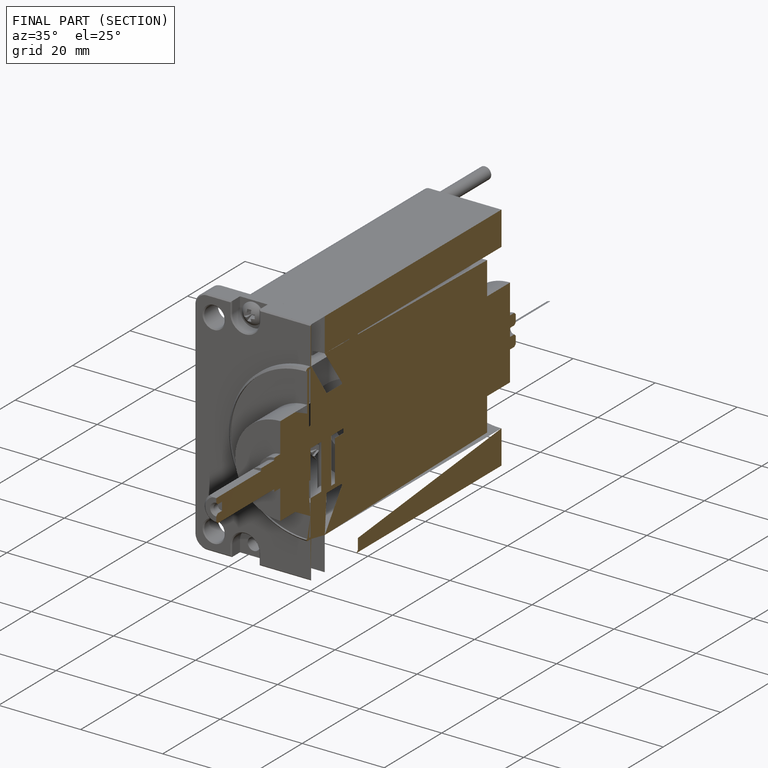
[diagram: finished part — half-section view (interior)]
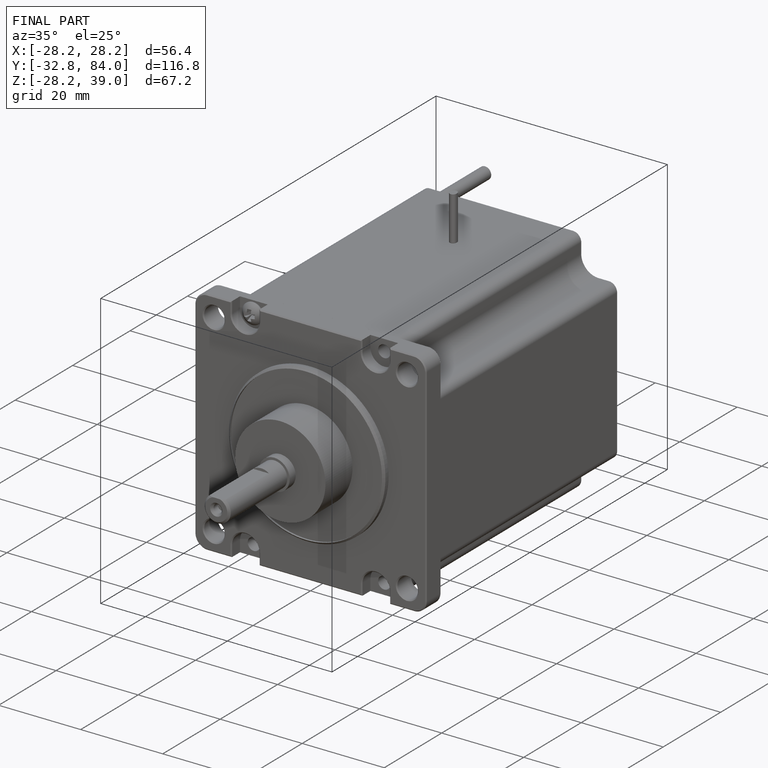
[diagram: finished part — iso view with bounding-box wireframe]
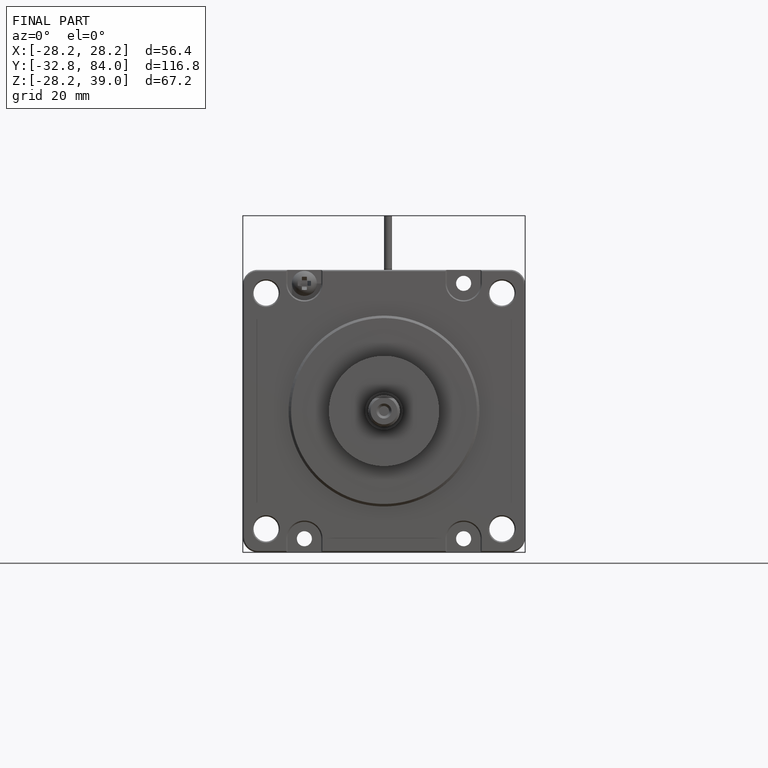
[diagram: finished part — front view with bounding-box wireframe]
